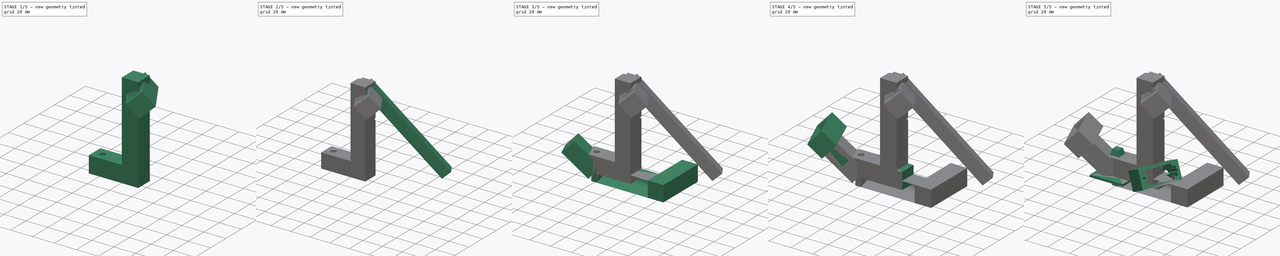
[diagram: build sequence overview — one tinted view per stage of 5, left to right]
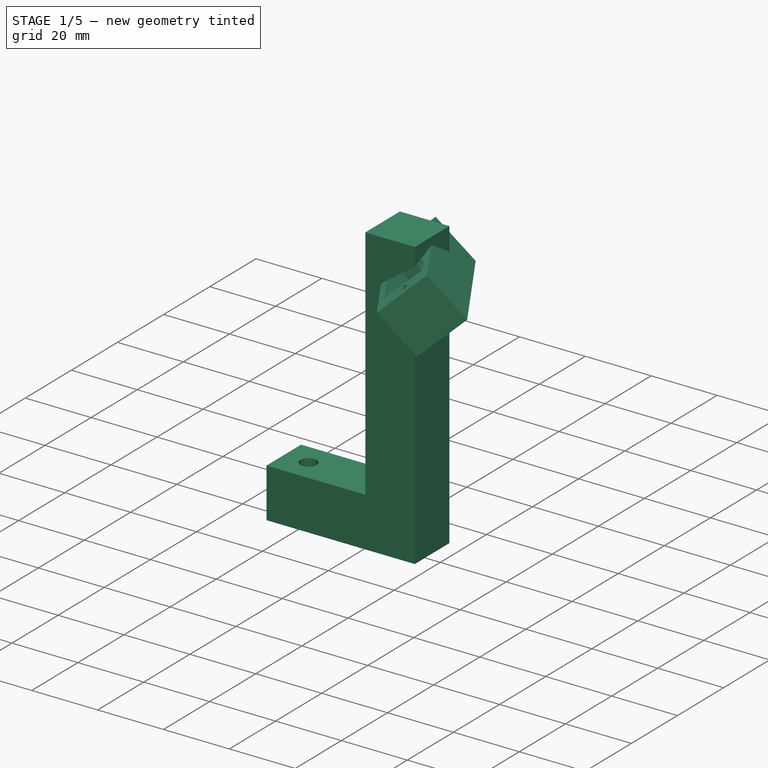
[diagram: stage 1 of 5 — iso view after this stage's code; geometry added in this stage tinted green]
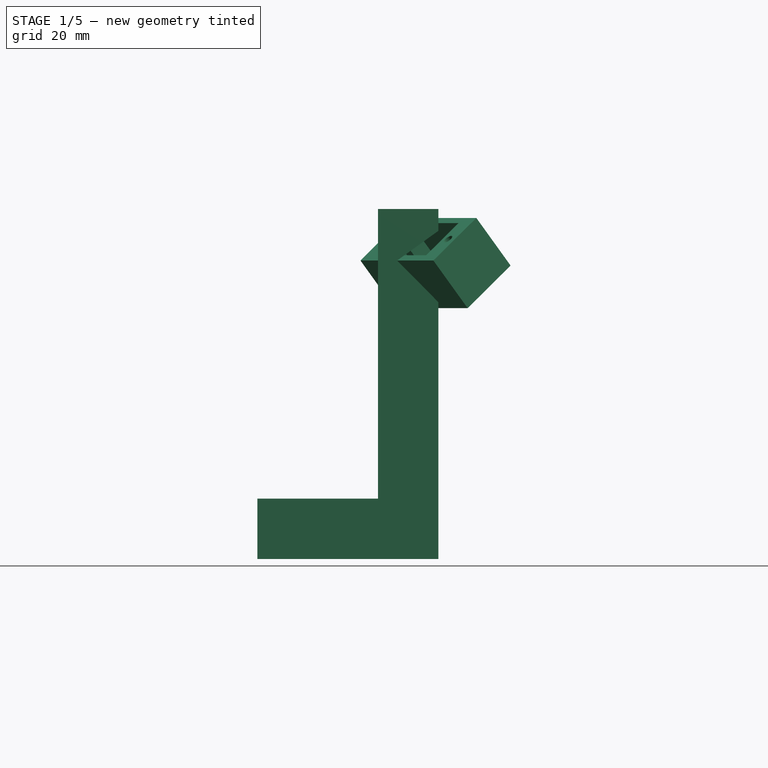
[diagram: stage 1 of 5 — front view after this stage's code; geometry added in this stage tinted green]
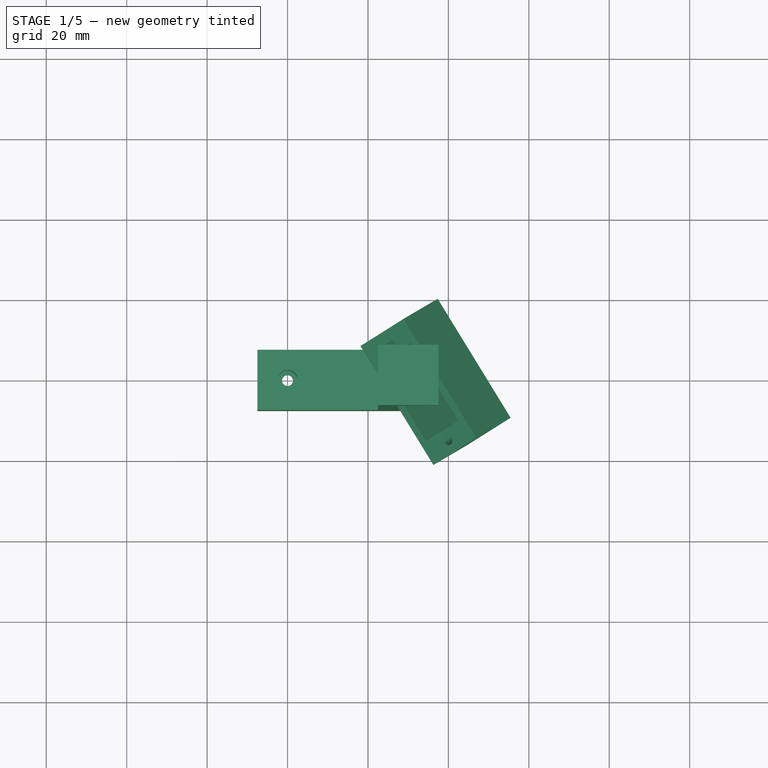
[diagram: stage 1 of 5 — top view after this stage's code; geometry added in this stage tinted green]
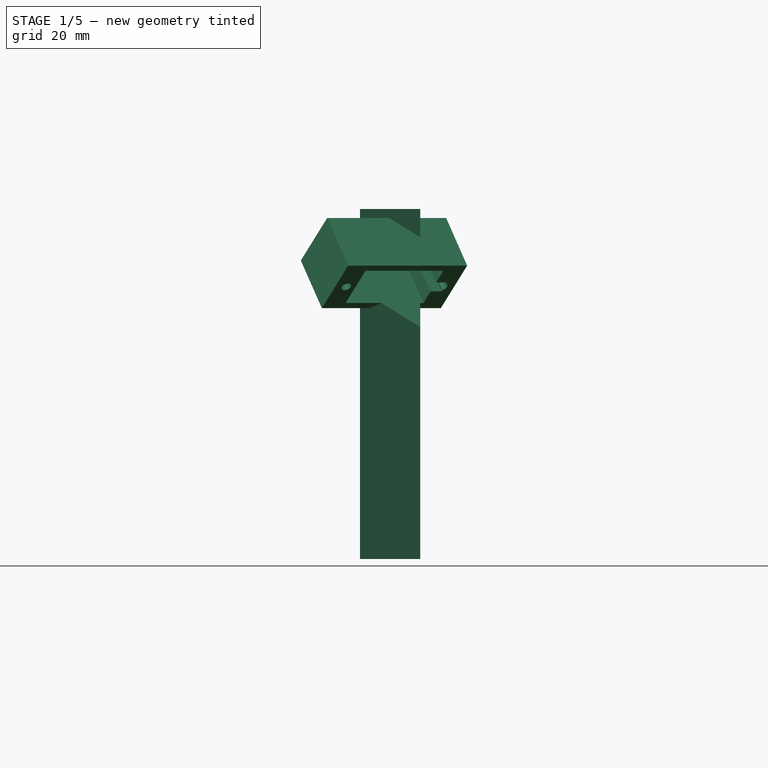
[diagram: stage 1 of 5 — right view after this stage's code; geometry added in this stage tinted green]
FCSTD DOCUMENT  (FreeCAD 0.21R33771 (Git))
Label: 3_joint_assembly
License: All rights reserved
LicenseURL: http://en.wikipedia.org/wiki/All_rights_reserved
objects: Sketcher::SketchObject×22, PartDesign::Pad×15, PartDesign::Plane×13, PartDesign::Pocket×7, PartDesign::Body×5, App::Part×3, Spreadsheet::Sheet×2, Part::Box×1
note: 85 computed .brp shape members not serialized (recipe doc carries the construction recipe); baked Part::Feature solids carry a one-line shape summary decoded from their .brp

FEATURE [Sketcher::SketchObject] Sketch008
  FullyConstrained = true
  MapMode = 5
  Support = -> [XY_Plane006]
  expr: Constraints[25] = <<Standards>>.shaft_thickness
  expr: Constraints[28] = <<Variables>>.length_2
  sketch-geometry (13):
    g0: LineSegment StartX=-7.5 StartY=-7.5 StartZ=0 EndX=-7.5 EndY=7.5 EndZ=0
    g1: LineSegment StartX=-7.5 StartY=7.5 StartZ=0 EndX=7.5 EndY=7.5 EndZ=0
    g2: LineSegment StartX=7.5 StartY=7.5 StartZ=0 EndX=7.5 EndY=-7.5 EndZ=0
    g3: LineSegment StartX=7.5 StartY=-7.5 StartZ=0 EndX=-7.5 EndY=-7.5 EndZ=0
    g4: GeomPoint X=0 Y=0 Z=0
    g5: LineSegment StartX=37.5 StartY=-7.5 StartZ=0 EndX=37.5 EndY=7.5 EndZ=0
    g6: LineSegment StartX=37.5 StartY=7.5 StartZ=0 EndX=22.5 EndY=7.5 EndZ=0
    g7: LineSegment StartX=22.5 StartY=7.5 StartZ=0 EndX=22.5 EndY=-7.5 EndZ=0
    g8: LineSegment StartX=22.5 StartY=-7.5 StartZ=0 EndX=37.5 EndY=-7.5 EndZ=0
    g9: GeomPoint X=30 Y=0 Z=0
    g10: LineSegment StartX=7.5 StartY=7.5 StartZ=0 EndX=22.5 EndY=7.5 EndZ=0
    g11: LineSegment StartX=22.5 StartY=-7.5 StartZ=0 EndX=7.5 EndY=-7.5 EndZ=0
    g12: Circle CenterX=0 CenterY=0 CenterZ=0 NormalX=0 NormalY=0 NormalZ=1 AngleXU=0 Radius=2.5
  constraints (31):
    c: Coincident(g0,g1)
    c: Coincident(g1,g2)
    c: Coincident(g2,g3)
    c: Coincident(g3,g0)
    c: Horizontal(g1)
    c: Horizontal(g3)
    c: Vertical(g0)
    c: Vertical(g2)
    c: Symmetric(g1,g0,g4)
    c: Coincident(g4,g-1)
    c: Coincident(g5,g6)
    c: Coincident(g6,g7)
    c: Coincident(g7,g8)
    c: Coincident(g8,g5)
    c: Horizontal(g6)
    c: Horizontal(g8)
    c: Vertical(g5)
    c: Vertical(g7)
    c: Symmetric(g6,g5,g9)
    c: PointOnObject(g9,g-1)
    c: Coincident(g10,g1)
    c: Coincident(g10,g6)
    c: Horizontal(g10)
    c: Coincident(g11,g7)
    c: Coincident(g11,g2)
    c: Distance(g0) = 15
    c: Equal(g0,g1)
    c: Equal(g0,g6)
    c: Distance(g9,g4) = 30
    c: Coincident(g12,g4)
    c: Diameter(g12) = 5
FEATURE [PartDesign::Pad] Pad007
  Direction = (0,0,1)
  Length = 15
  Length2 = 10
  Profile = -> Sketch008
  ReferenceAxis = -> Sketch008 [N_Axis]
  Type = 0
  expr: Length = <<Standards>>.shaft_thickness
FEATURE [PartDesign::Plane] DatumPlane008
  AttachmentOffset = pos=(0,0,-3) rot=(0,0,1;0rad)
  Length = 93.1537
  MapMode = 5
  Placement = pos=(0,0,3) rot=(1,0,0;3.14159rad)
  ResizeMode = 0
  Support = -> [Pad007]
  Width = 62.686
FEATURE [Sketcher::SketchObject] Sketch009
  ExternalGeometry = -> [Pad007]
  FullyConstrained = true
  MapMode = 5
  Placement = pos=(0,0,3) rot=(1,0,0;3.14159rad)
  Support = -> [DatumPlane008]
  sketch-geometry (2):
    g0: Circle CenterX=0 CenterY=0 CenterZ=0 NormalX=0 NormalY=0 NormalZ=1 AngleXU=0 Radius=1.35
    g1: Circle CenterX=0 CenterY=0 CenterZ=0 NormalX=0 NormalY=0 NormalZ=1 AngleXU=0 Radius=2.5
  constraints (4):
    c: Coincident(g0,g-3)
    c: Coincident(g1,g0)
    c: Diameter(g0) = 2.7
    c: Equal(g1,g-3)
FEATURE [PartDesign::Pad] Pad008
  BaseFeature = -> Pad007
  Direction = (0,0,-1)
  Length = 2
  Length2 = 10
  Profile = -> Sketch009
  ReferenceAxis = -> Sketch009 [N_Axis]
  Reversed = true
  Type = 0
FEATURE [Sketcher::SketchObject] Sketch010
  FullyConstrained = true
  MapMode = 5
  Support = -> [XY_Plane006]
  expr: Constraints[25] = Sketch008.Constraints[25]
  expr: Constraints[28] = Sketch008.Constraints[28]
  expr: Constraints[30] = Sketch008.Constraints[30]
  sketch-geometry (13):
    g0: LineSegment StartX=-7.5 StartY=-7.5 StartZ=0 EndX=-7.5 EndY=7.5 EndZ=0
    g1: LineSegment StartX=-7.5 StartY=7.5 StartZ=0 EndX=7.5 EndY=7.5 EndZ=0
    g2: LineSegment StartX=7.5 StartY=7.5 StartZ=0 EndX=7.5 EndY=-7.5 EndZ=0
    g3: LineSegment StartX=7.5 StartY=-7.5 StartZ=0 EndX=-7.5 EndY=-7.5 EndZ=0
    g4: GeomPoint X=0 Y=0 Z=0
    g5: LineSegment StartX=37.5 StartY=-7.5 StartZ=0 EndX=37.5 EndY=7.5 EndZ=0
    g6: LineSegment StartX=37.5 StartY=7.5 StartZ=0 EndX=22.5 EndY=7.5 EndZ=0
    g7: LineSegment StartX=22.5 StartY=7.5 StartZ=0 EndX=22.5 EndY=-7.5 EndZ=0
    g8: LineSegment StartX=22.5 StartY=-7.5 StartZ=0 EndX=37.5 EndY=-7.5 EndZ=0
    g9: GeomPoint X=30 Y=0 Z=0
    g10: LineSegment StartX=7.5 StartY=7.5 StartZ=0 EndX=22.5 EndY=7.5 EndZ=0
    g11: LineSegment StartX=22.5 StartY=-7.5 StartZ=0 EndX=7.5 EndY=-7.5 EndZ=0
    g12: Circle CenterX=0 CenterY=0 CenterZ=0 NormalX=0 NormalY=0 NormalZ=1 AngleXU=0 Radius=2.5
  constraints (31):
    c: Coincident(g0,g1)
    c: Coincident(g1,g2)
    c: Coincident(g2,g3)
    c: Coincident(g3,g0)
    c: Horizontal(g1)
    c: Horizontal(g3)
    c: Vertical(g0)
    c: Vertical(g2)
    c: Symmetric(g1,g0,g4)
    c: Coincident(g4,g-1)
    c: Coincident(g5,g6)
    c: Coincident(g6,g7)
    c: Coincident(g7,g8)
    c: Coincident(g8,g5)
    c: Horizontal(g6)
    c: Horizontal(g8)
    c: Vertical(g5)
    c: Vertical(g7)
    c: Symmetric(g6,g5,g9)
    c: PointOnObject(g9,g-1)
    c: Coincident(g10,g1)
    c: Coincident(g10,g6)
    c: Horizontal(g10)
    c: Coincident(g11,g7)
    c: Coincident(g11,g2)
    c: Distance(g0) = 15
    c: Equal(g0,g1)
    c: Equal(g0,g6)
    c: Distance(g9,g4) = 30
    c: Coincident(g12,g4)
    c: Diameter(g12) = 5
FEATURE [PartDesign::Pad] Pad009
  BaseFeature = -> Pad008
  Direction = (0,0,1)
  Length = 87
  Length2 = 10
  Profile = -> Sketch010
  ReferenceAxis = -> Sketch010 [N_Axis]
  Type = 0
  expr: Length = <<Standards>>.shaft_thickness + <<Variables>>.height_2
FEATURE [PartDesign::Plane] DatumPlane009  label="Alpha003"
  AttachmentOffset = pos=(0,79.5,30) rot=(0,1,0;0.55rad)
  Length = 104.164
  MapMode = 5
  Placement = pos=(30,1.1e-14,79.5) rot=(0.368099,0.657458,0.657458;2.43618rad)
  ResizeMode = 0
  Support = -> [YZ_Plane006]
  Width = 131.478
  expr: .AttachmentOffset.Base.y = <<Variables>>.height_2 + <<Standards>>.shaft_thickness / 2
  expr: .AttachmentOffset.Base.z = <<Variables>>.length_2
  expr: .AttachmentOffset.Rotation.Pitch = <<Variables>>.alpha_3 * 180 / pi
  expr: .AttachmentOffset.Rotation.Roll = 0
FEATURE [PartDesign::Plane] DatumPlane010  label="Beta003"
  AttachmentOffset = pos=(0,0,0) rot=(1,0,0;0.87rad)
  Length = 106.82
  MapMode = 5
  Placement = pos=(30,8.9e-15,79.5) rot=(0.465431,0.831303,0.303824;2.80461rad)
  ResizeMode = 0
  Support = -> [DatumPlane009]
  Width = 166.763
  expr: .AttachmentOffset.Rotation.Roll = -<<Variables>>.beta_3 * 180 / pi
FEATURE [Sketcher::SketchObject] Sketch011
  FullyConstrained = true
  MapMode = 5
  Placement = pos=(30,7.1e-15,79.5) rot=(0.465431,0.831303,0.303824;2.80461rad)
  Support = -> [DatumPlane010]
  expr: Constraints[52] = <<Standards>>.thickness
  expr: Constraints[64] = 12.2 + <<Standards>>.tolerance
  expr: Constraints[65] = 22.5 + <<Standards>>.tolerance
  sketch-geometry (21):
    g0: LineSegment StartX=-16.2 StartY=6.2 StartZ=0 EndX=6.5 EndY=6.2 EndZ=0
    g1: LineSegment StartX=6.5 StartY=-6.2 StartZ=0 EndX=-16.2 EndY=-6.2 EndZ=0
    g2: LineSegment StartX=-16.2 StartY=-6.2 StartZ=0 EndX=-16.2 EndY=6.2 EndZ=0
    g3: LineSegment StartX=6.5 StartY=6.2 StartZ=0 EndX=6.5 EndY=1.75 EndZ=0
    g4: LineSegment StartX=6.5 StartY=1.75 StartZ=0 EndX=9.7 EndY=1.75 EndZ=0
    g5: LineSegment StartX=9.7 StartY=1.75 StartZ=0 EndX=9.7 EndY=1.2 EndZ=0
    g6: LineSegment StartX=6.5 StartY=-6.2 StartZ=0 EndX=6.5 EndY=-1.75 EndZ=0
    g7: LineSegment StartX=6.5 StartY=-1.75 StartZ=0 EndX=9.7 EndY=-1.75 EndZ=0
    g8: LineSegment StartX=9.7 StartY=-1.75 StartZ=0 EndX=9.7 EndY=-1.2 EndZ=0
    g9: ArcOfCircle CenterX=9.2 CenterY=0 CenterZ=0 NormalX=0 NormalY=0 NormalZ=1 AngleXU=0 Radius=1.3 StartAngle=5.10718 EndAngle=7.45919
    g10: Circle CenterX=-18.9 CenterY=0 CenterZ=0 NormalX=0 NormalY=0 NormalZ=1 AngleXU=0 Radius=1.3
    g11: LineSegment StartX=-22.2 StartY=8.2 StartZ=0 EndX=12.5 EndY=8.2 EndZ=0
    g12: LineSegment StartX=12.5 StartY=8.2 StartZ=0 EndX=12.5 EndY=-8.2 EndZ=0
    g13: LineSegment StartX=12.5 StartY=-8.2 StartZ=0 EndX=-22.2 EndY=-8.2 EndZ=0
    g14: LineSegment StartX=-22.2 StartY=-8.2 StartZ=0 EndX=-22.2 EndY=8.2 EndZ=0
    g15: LineSegment StartX=-20.2 StartY=0 StartZ=0 EndX=-22.2 EndY=0 EndZ=0
    g16: LineSegment StartX=6.5 StartY=6.2 StartZ=0 EndX=6.5 EndY=8.2 EndZ=0
    g17: LineSegment StartX=-16.2 StartY=-6.2 StartZ=0 EndX=-16.2 EndY=-8.2 EndZ=0
    g18: LineSegment StartX=9.2 StartY=0 StartZ=0 EndX=6.5 EndY=0 EndZ=0
    g19: LineSegment StartX=10.5 StartY=0 StartZ=0 EndX=12.5 EndY=0 EndZ=0
    g20: LineSegment StartX=-18.9 StartY=0 StartZ=0 EndX=-16.2 EndY=0 EndZ=0
  constraints (66):
    c: Coincident(g1,g2)
    c: Coincident(g2,g0)
    c: Horizontal(g0)
    c: Horizontal(g1)
    c: Vertical(g2)
    c: Coincident(g3,g0)
    c: Vertical(g3)
    c: Coincident(g4,g3)
    c: Horizontal(g4)
    c: Coincident(g5,g4)
    c: Vertical(g5)
    c: Coincident(g6,g1)
    c: Vertical(g6)
    c: Coincident(g7,g6)
    c: Horizontal(g7)
    c: Coincident(g8,g7)
    c: Vertical(g8)
    c: PointOnObject(g9,g-1)
    c: Coincident(g9,g5)
    c: Coincident(g9,g8)
    c: Equal(g5,g8)
    c: Equal(g7,g4)
    c: Equal(g3,g6)
    c: PointOnObject(g3,g6)
    c: PointOnObject(g10,g-1)
    c: Coincident(g11,g12)
    c: Coincident(g12,g13)
    c: Coincident(g13,g14)
    c: Coincident(g14,g11)
    c: Horizontal(g11)
    c: Horizontal(g13)
    c: Vertical(g12)
    c: Vertical(g14)
    c: PointOnObject(g15,g14)
    c: Coincident(g16,g0)
    c: PointOnObject(g16,g11)
    c: Vertical(g16)
    c: Coincident(g17,g1)
    c: PointOnObject(g17,g13)
    c: Vertical(g17)
    c: Equal(g10,g9)
    c: Coincident(g18,g9)
    c: PointOnObject(g18,g-1)
    c: PointOnObject(g18,g3)
    c: PointOnObject(g19,g9)
    c: PointOnObject(g19,g12)
    c: Horizontal(g19)
    c: Perpendicular(g9,g19)
    c: Horizontal(g15)
    c: Equal(g15,g17)
    c: Equal(g17,g16)
    c: Equal(g16,g19)
    c: Distance(g16) = 2
    c: PointOnObject(g15,g10)
    c: Perpendicular(g10,g15)
    c: Coincident(g20,g10)
    c: PointOnObject(g20,g2)
    c: Horizontal(g20)
    c: Equal(g20,g18)
    c: Distance(g3,g6) = 3.5
    c: Distance(g4) = 3.2
    c: Distance(g18) = 2.7
    c: Diameter(g9) = 2.6
    c: Distance(g-1,g18) = 6.5
    c: Distance(g2) = 12.4
    c: Distance(g0) = 22.7
FEATURE [PartDesign::Pad] Pad010
  BaseFeature = -> Pad009
  Direction = (0.54973,0.337043,-0.764329)
  Length = 15.5
  Length2 = 10
  Profile = -> Sketch011
  ReferenceAxis = -> Sketch011 [N_Axis]
  Type = 0
FEATURE [Sketcher::SketchObject] Sketch012
  FullyConstrained = true
  MapMode = 5
  Placement = pos=(30,7.1e-15,79.5) rot=(0.465431,0.831303,0.303824;2.80461rad)
  Support = -> [DatumPlane010]
  expr: Constraints[52] = Sketch011.Constraints[52]
  expr: Constraints[59] = Sketch011.Constraints[59]
  expr: Constraints[60] = Sketch011.Constraints[60]
  expr: Constraints[61] = Sketch011.Constraints[61]
  expr: Constraints[62] = Sketch011.Constraints[62]
  expr: Constraints[63] = Sketch011.Constraints[63]
  expr: Constraints[64] = Sketch011.Constraints[64]
  expr: Constraints[65] = Sketch011.Constraints[65]
  sketch-geometry (21):
    g0: LineSegment StartX=-16.2 StartY=6.2 StartZ=0 EndX=6.5 EndY=6.2 EndZ=0
    g1: LineSegment StartX=6.5 StartY=-6.2 StartZ=0 EndX=-16.2 EndY=-6.2 EndZ=0
    g2: LineSegment StartX=-16.2 StartY=-6.2 StartZ=0 EndX=-16.2 EndY=6.2 EndZ=0
    g3: LineSegment StartX=6.5 StartY=6.2 StartZ=0 EndX=6.5 EndY=1.75 EndZ=0
    g4: LineSegment StartX=6.5 StartY=1.75 StartZ=0 EndX=9.7 EndY=1.75 EndZ=0
    g5: LineSegment StartX=9.7 StartY=1.75 StartZ=0 EndX=9.7 EndY=1.2 EndZ=0
    g6: LineSegment StartX=6.5 StartY=-6.2 StartZ=0 EndX=6.5 EndY=-1.75 EndZ=0
    g7: LineSegment StartX=6.5 StartY=-1.75 StartZ=0 EndX=9.7 EndY=-1.75 EndZ=0
    g8: LineSegment StartX=9.7 StartY=-1.75 StartZ=0 EndX=9.7 EndY=-1.2 EndZ=0
    g9: ArcOfCircle CenterX=9.2 CenterY=0 CenterZ=0 NormalX=0 NormalY=0 NormalZ=1 AngleXU=0 Radius=1.3 StartAngle=5.10718 EndAngle=7.45919
    g10: Circle CenterX=-18.9 CenterY=0 CenterZ=0 NormalX=0 NormalY=0 NormalZ=1 AngleXU=0 Radius=1.3
    g11: LineSegment StartX=-22.2 StartY=8.2 StartZ=0 EndX=12.5 EndY=8.2 EndZ=0
    g12: LineSegment StartX=12.5 StartY=8.2 StartZ=0 EndX=12.5 EndY=-8.2 EndZ=0
    g13: LineSegment StartX=12.5 StartY=-8.2 StartZ=0 EndX=-22.2 EndY=-8.2 EndZ=0
    g14: LineSegment StartX=-22.2 StartY=-8.2 StartZ=0 EndX=-22.2 EndY=8.2 EndZ=0
    g15: LineSegment StartX=-20.2 StartY=0 StartZ=0 EndX=-22.2 EndY=0 EndZ=0
    g16: LineSegment StartX=6.5 StartY=6.2 StartZ=0 EndX=6.5 EndY=8.2 EndZ=0
    g17: LineSegment StartX=-16.2 StartY=-6.2 StartZ=0 EndX=-16.2 EndY=-8.2 EndZ=0
    g18: LineSegment StartX=9.2 StartY=0 StartZ=0 EndX=6.5 EndY=0 EndZ=0
    g19: LineSegment StartX=10.5 StartY=0 StartZ=0 EndX=12.5 EndY=0 EndZ=0
    g20: LineSegment StartX=-18.9 StartY=0 StartZ=0 EndX=-16.2 EndY=0 EndZ=0
  constraints (66):
    c: Coincident(g1,g2)
    c: Coincident(g2,g0)
    c: Horizontal(g0)
    c: Horizontal(g1)
    c: Vertical(g2)
    c: Coincident(g3,g0)
    c: Vertical(g3)
    c: Coincident(g4,g3)
    c: Horizontal(g4)
    c: Coincident(g5,g4)
    c: Vertical(g5)
    c: Coincident(g6,g1)
    c: Vertical(g6)
    c: Coincident(g7,g6)
    c: Horizontal(g7)
    c: Coincident(g8,g7)
    c: Vertical(g8)
    c: PointOnObject(g9,g-1)
    c: Coincident(g9,g5)
    c: Coincident(g9,g8)
    c: Equal(g5,g8)
    c: Equal(g7,g4)
    c: Equal(g3,g6)
    c: PointOnObject(g3,g6)
    c: PointOnObject(g10,g-1)
    c: Coincident(g11,g12)
    c: Coincident(g12,g13)
    c: Coincident(g13,g14)
    c: Coincident(g14,g11)
    c: Horizontal(g11)
    c: Horizontal(g13)
    c: Vertical(g12)
    c: Vertical(g14)
    c: PointOnObject(g15,g14)
    c: Coincident(g16,g0)
    c: PointOnObject(g16,g11)
    c: Vertical(g16)
    c: Coincident(g17,g1)
    c: PointOnObject(g17,g13)
    c: Vertical(g17)
    c: Equal(g10,g9)
    c: Coincident(g18,g9)
    c: PointOnObject(g18,g-1)
    c: PointOnObject(g18,g3)
    c: PointOnObject(g19,g9)
    c: PointOnObject(g19,g12)
    c: Horizontal(g19)
    c: Perpendicular(g9,g19)
    c: Horizontal(g15)
    c: Equal(g15,g17)
    c: Equal(g17,g16)
    c: Equal(g16,g19)
    c: Distance(g16) = 2
    c: PointOnObject(g15,g10)
    c: Perpendicular(g10,g15)
    c: Coincident(g20,g10)
    c: PointOnObject(g20,g2)
    c: Horizontal(g20)
    c: Equal(g20,g18)
    c: Distance(g3,g6) = 3.5
    c: Distance(g4) = 3.2
    c: Distance(g18) = 2.7
    c: Diameter(g9) = 2.6
    c: Distance(g-1,g18) = 6.5
    c: Distance(g2) = 12.4
    c: Distance(g0) = 22.7
FEATURE [PartDesign::Pocket] Pocket001
  BaseFeature = -> Pad010
  Direction = (-0.54973,-0.337043,0.764329)
  Length = 31
  Length2 = 5
  Profile = -> Sketch012
  ReferenceAxis = -> Sketch012 [N_Axis]
  Reversed = true
  Type = 0
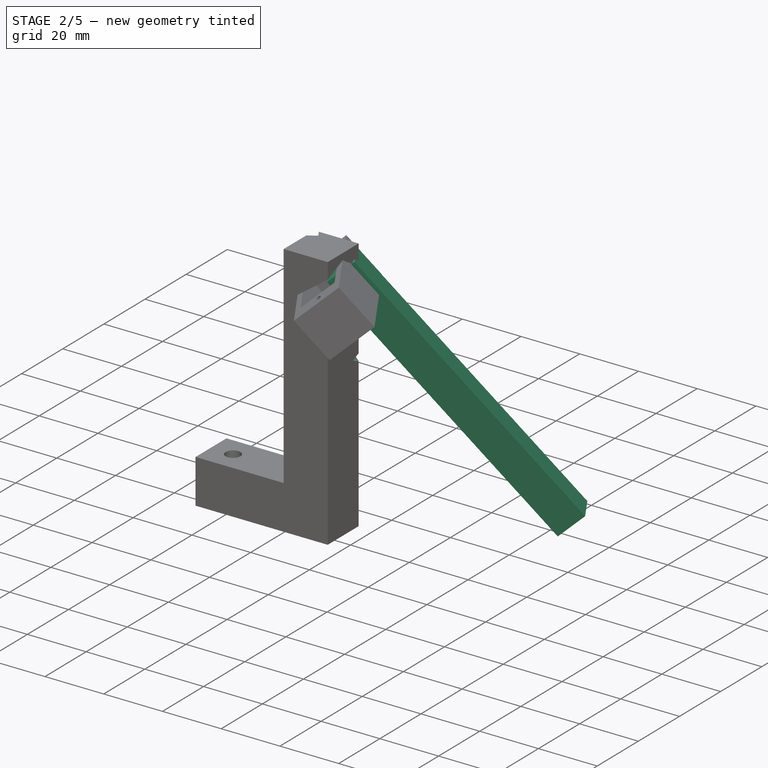
[diagram: stage 2 of 5 — iso view after this stage's code; geometry added in this stage tinted green]
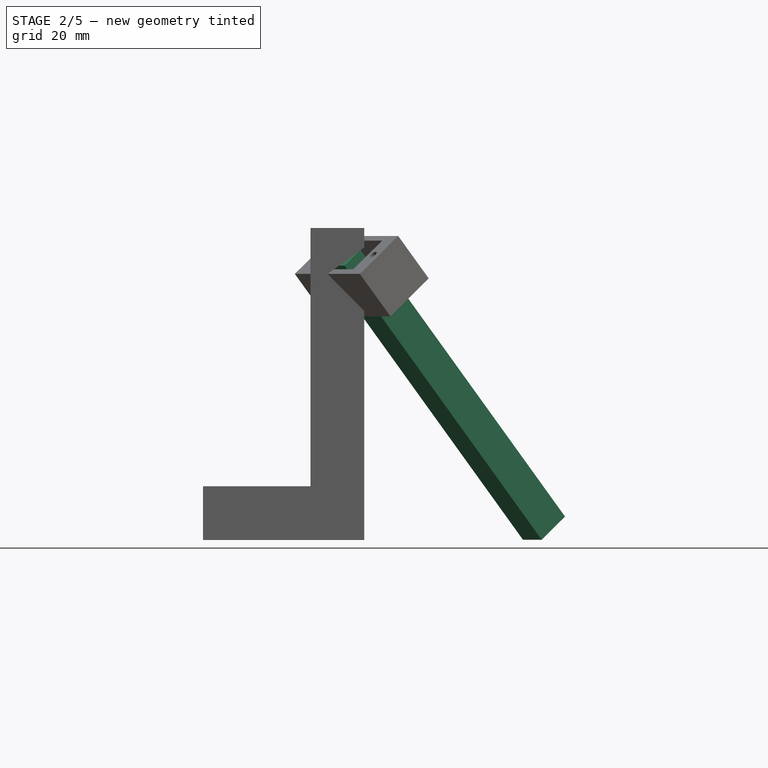
[diagram: stage 2 of 5 — front view after this stage's code; geometry added in this stage tinted green]
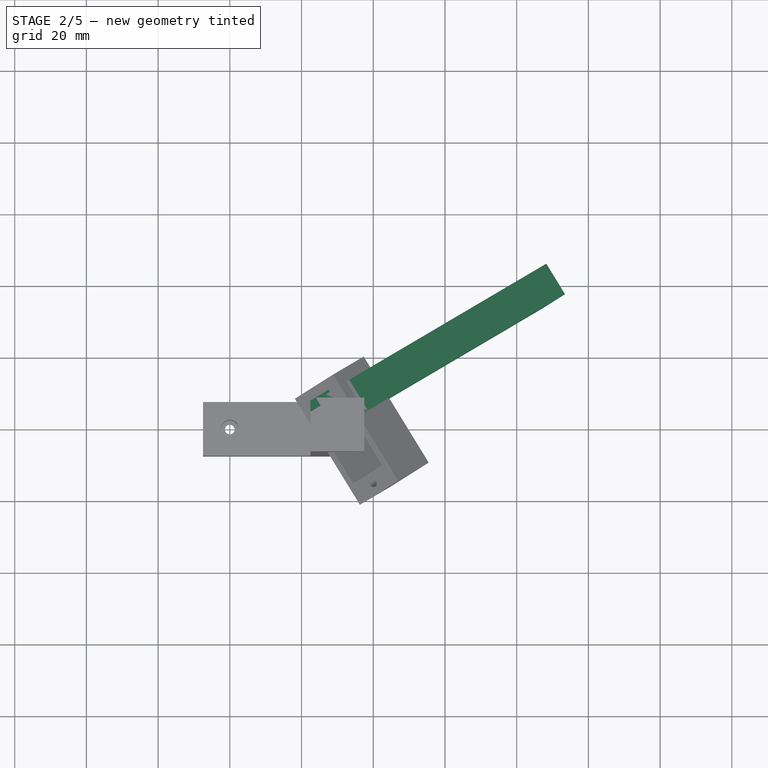
[diagram: stage 2 of 5 — top view after this stage's code; geometry added in this stage tinted green]
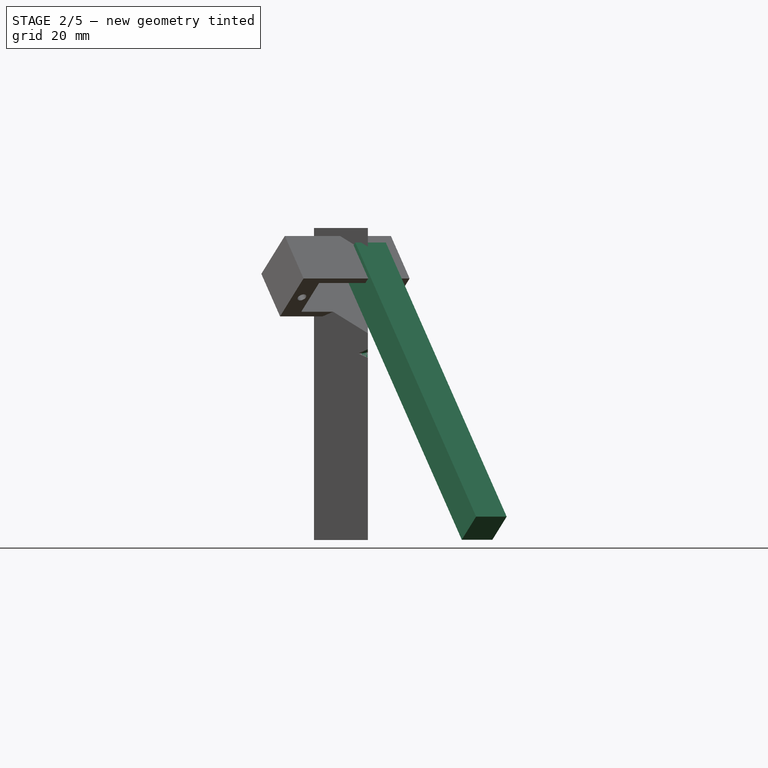
[diagram: stage 2 of 5 — right view after this stage's code; geometry added in this stage tinted green]
FEATURE [Sketcher::SketchObject] Sketch013
  ExternalGeometry = -> [Pocket001]
  FullyConstrained = true
  MapMode = 5
  Placement = pos=(30,7.1e-15,79.5) rot=(0.465431,0.831303,0.303824;2.80461rad)
  Support = -> [DatumPlane010]
  expr: Constraints[8] = 7.6 + <<Standards>>.tolerance
  expr: Constraints[9] = 2.6 + <<Standards>>.tolerance
  sketch-geometry (5):
    g0: LineSegment StartX=6.9 StartY=-3.9 StartZ=0 EndX=9.7 EndY=-3.9 EndZ=0
    g1: LineSegment StartX=9.7 StartY=-3.9 StartZ=0 EndX=9.7 EndY=3.9 EndZ=0
    g2: LineSegment StartX=9.7 StartY=3.9 StartZ=0 EndX=6.9 EndY=3.9 EndZ=0
    g3: LineSegment StartX=6.9 StartY=3.9 StartZ=0 EndX=6.9 EndY=-3.9 EndZ=0
    g4: GeomPoint X=9.7 Y=-2.5437e-12 Z=0
  constraints (12):
    c: Coincident(g0,g1)
    c: Coincident(g1,g2)
    c: Coincident(g2,g3)
    c: Coincident(g3,g0)
    c: Horizontal(g0)
    c: Horizontal(g2)
    c: Vertical(g1)
    c: Vertical(g3)
    c: Distance(g3) = 7.8
    c: Distance(g2) = 2.8
    c: Symmetric(g1,g0,g4)
    c: Symmetric(g-3,g-4,g4)
FEATURE [PartDesign::Pocket] Pocket002
  BaseFeature = -> Pocket001
  Direction = (-0.54973,-0.337043,0.764329)
  Length = 31
  Length2 = 5
  Midplane = true
  Profile = -> Sketch013
  ReferenceAxis = -> Sketch013 [N_Axis]
  Type = 0
FEATURE [PartDesign::Body] Body005  label="Arm002"
  Group = -> [Sketch016,Pad011,Sketch017,Pad012,DatumPlane011,Sketch018,Pad013,DatumPlane012,Sketch019,Pad014]
  Origin = -> Origin008
  Tip = -> Pad014
FEATURE [App::Part] Part002  label="Joint 3"
  Group = -> [Body005]
  Origin = -> Origin007
  Placement = pos=(44.7053,9.01589,59.0542) rot=(-0.234451,0.830949,0.504536;1.0198rad)
FEATURE [Part::Box] Box005  label="Cube001"
  AttacherType = Attacher::AttachEngine3D
  Height = 10
  Length = 100
  Placement = pos=(32,0,76.5) rot=(0.234451,-0.830949,-0.504536;5.26339rad)
  Width = 10
FEATURE [PartDesign::Plane] DatumPlane016
  Length = 93.1537
  MapMode = 5
  Placement = pos=(0,0,87) rot=(0,0,1;0rad)
  ResizeMode = 0
  Support = -> [Pocket002]
  Width = 62.686
FEATURE [Sketcher::SketchObject] Sketch026
  ExternalGeometry = -> [Pocket002]
  FullyConstrained = true
  MapMode = 5
  Placement = pos=(0,0,87) rot=(0,0,1;0rad)
  Support = -> [DatumPlane016]
  sketch-geometry (3):
    g0: LineSegment StartX=22.5 StartY=7.5 StartZ=0 EndX=23.6749 EndY=7.5 EndZ=0
    g1: LineSegment StartX=23.6749 StartY=7.5 StartZ=0 EndX=22.5 EndY=6.77968 EndZ=0
    g2: LineSegment StartX=22.5 StartY=6.77968 StartZ=0 EndX=22.5 EndY=7.5 EndZ=0
  constraints (6):
    c: Coincident(g0,g-5)
    c: Coincident(g0,g-3)
    c: Coincident(g1,g0)
    c: Coincident(g1,g-4)
    c: Coincident(g2,g1)
    c: Coincident(g2,g0)
FEATURE [PartDesign::Pocket] Pocket007
  BaseFeature = -> Pocket002
  Direction = (0,0,-1)
  Length = 0
  Length2 = 5
  Profile = -> Sketch026
  ReferenceAxis = -> Sketch026 [N_Axis]
  Type = 3
  UpToFace = -> Pocket002 [Face25]
FEATURE [PartDesign::Plane] DatumPlane017
  AttachmentOffset = pos=(0,0,26.75) rot=(0,0,1;0rad)
  Length = 106.82
  MapMode = 5
  Placement = pos=(44.7053,9.01589,59.0542) rot=(0.465431,0.831303,0.303824;2.80461rad)
  ResizeMode = 0
  Support = -> [DatumPlane010]
  Width = 166.763
FEATURE [Sketcher::SketchObject] Sketch027
  FullyConstrained = true
  MapMode = 5
  Placement = pos=(44.7053,9.01589,59.0542) rot=(0.465431,0.831303,0.303824;2.80461rad)
  Support = -> [DatumPlane017]
  expr: Constraints[10] = <<Standards>>.shaft_thickness + <<Standards>>.tolerance * 2
  sketch-geometry (6):
    g0: LineSegment StartX=-7.7 StartY=-7.7 StartZ=0 EndX=-7.7 EndY=7.7 EndZ=0
    g1: LineSegment StartX=-7.7 StartY=7.7 StartZ=0 EndX=7.7 EndY=7.7 EndZ=0
    g2: LineSegment StartX=7.7 StartY=7.7 StartZ=0 EndX=7.7 EndY=-7.7 EndZ=0
    g3: LineSegment StartX=7.7 StartY=-7.7 StartZ=0 EndX=-7.7 EndY=-7.7 EndZ=0
    g4: GeomPoint X=0 Y=0 Z=0
    g5: Circle CenterX=0 CenterY=0 CenterZ=0 NormalX=0 NormalY=0 NormalZ=1 AngleXU=0 Radius=10.8894
  constraints (14):
    c: Coincident(g0,g1)
    c: Coincident(g1,g2)
    c: Coincident(g2,g3)
    c: Coincident(g3,g0)
    c: Horizontal(g1)
    c: Horizontal(g3)
    c: Vertical(g0)
    c: Vertical(g2)
    c: Symmetric(g1,g0,g4)
    c: Coincident(g4,g-1)
    c: Distance(g1) = 15.4
    c: Equal(g1,g2)
    c: Coincident(g5,g4)
    c: PointOnObject(g1,g5)
FEATURE [PartDesign::Pocket] Pocket008
  BaseFeature = -> Pocket007
  Direction = (-0.54973,-0.337043,0.764329)
  Length = 5
  Length2 = 5
  Profile = -> Sketch027
  ReferenceAxis = -> Sketch027 [N_Axis]
  Reversed = true
  Type = 0
FEATURE [PartDesign::Body] Body004  label="Arm001"
  Group = -> [Sketch008,Pad007,DatumPlane008,Sketch009,Pad008,Sketch010,Pad009,DatumPlane009,DatumPlane010,Sketch011,Pad010,Sketch012,Pocket001,Sketch013,Pocket002,DatumPlane016,Sketch026,Pocket007,DatumPlane017,Sketch027,Pocket008]
  Origin = -> Origin006
  Tip = -> Pocket008
FEATURE [App::Part] Part001  label="Joint 2"
  Group = -> [Body004,Part002,Box005]
  Origin = -> Origin003
  Placement = pos=(-34.9635,-76.1489,44.929) rot=(0.862206,-0.435713,0.25837;1.60004rad)
FEATURE [App::Part] Part  label="Joint 1"
  Group = -> [Body,Body001,Body003,Part001]
  Origin = -> Origin
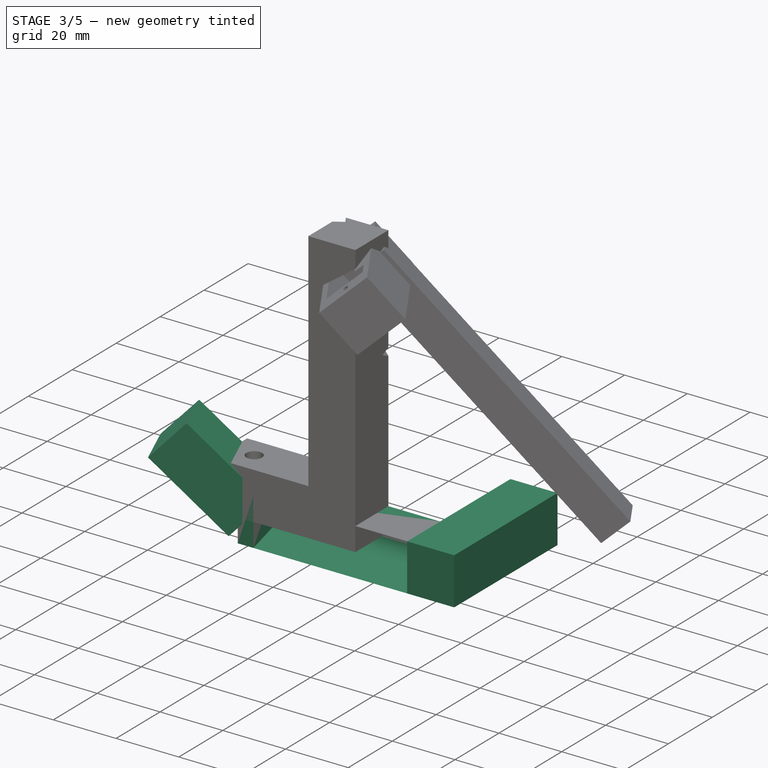
[diagram: stage 3 of 5 — iso view after this stage's code; geometry added in this stage tinted green]
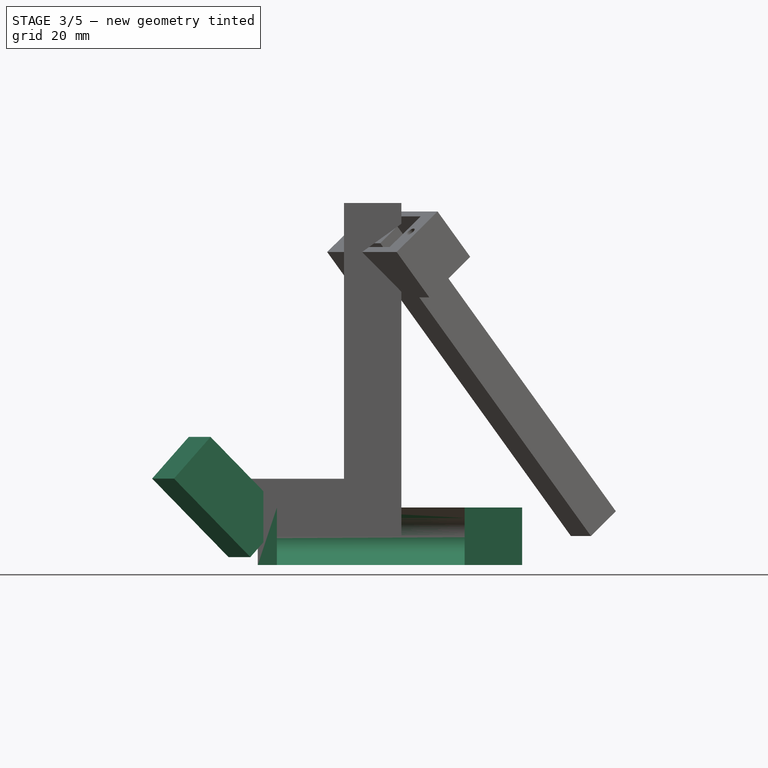
[diagram: stage 3 of 5 — front view after this stage's code; geometry added in this stage tinted green]
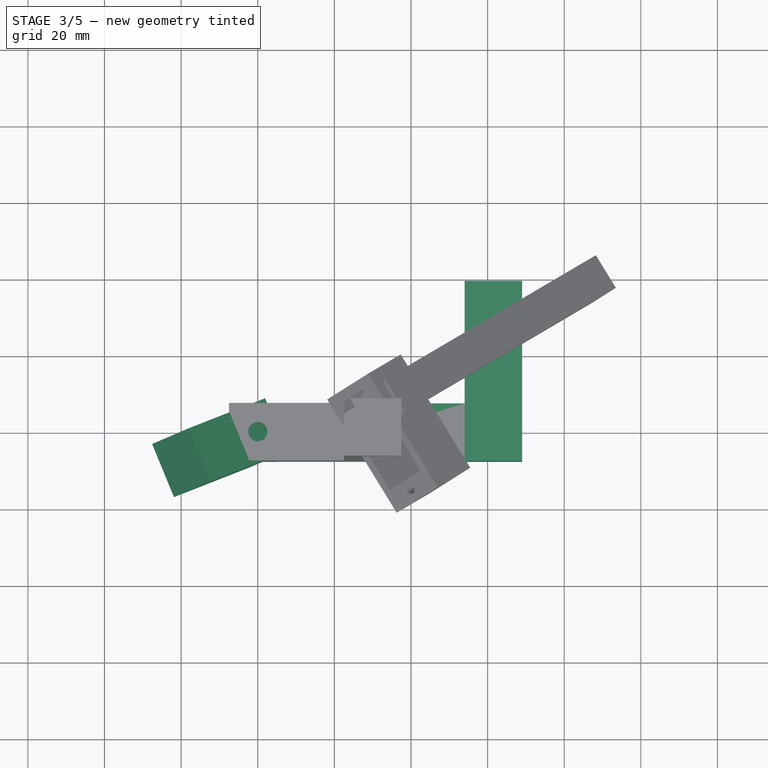
[diagram: stage 3 of 5 — top view after this stage's code; geometry added in this stage tinted green]
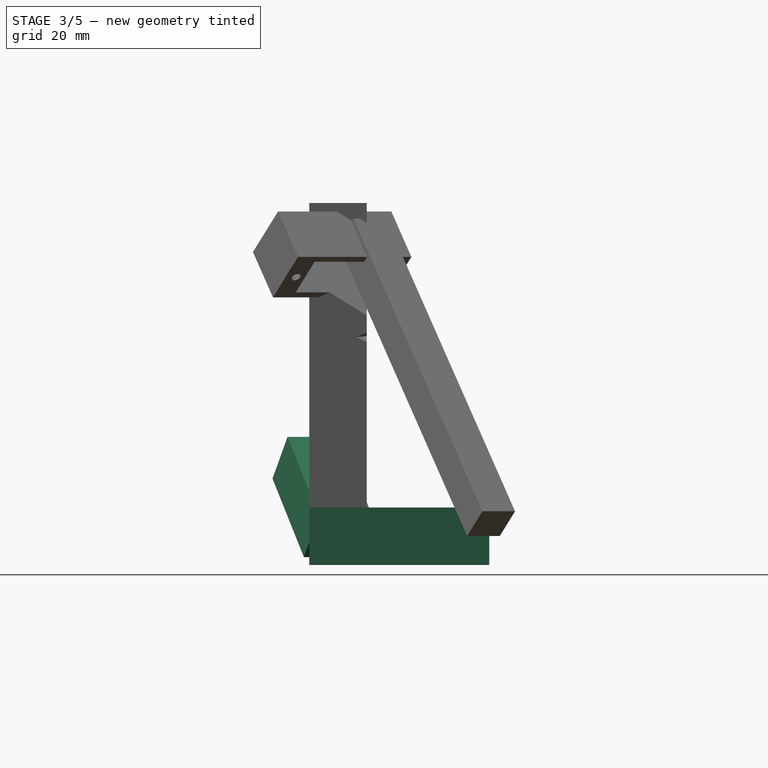
[diagram: stage 3 of 5 — right view after this stage's code; geometry added in this stage tinted green]
FEATURE [Spreadsheet::Sheet] Spreadsheet  label="Variables"
  cells = A1='Joint Index; B1='Alpha; C1='Beta; D1='Length; E1='Height; A2=0; B2(alpha_1)=0.39; C2(beta_1)=0.76; D2(length_1)=35; E2(height_1)=64; A3=1; B3(alpha_2)=-0.41; C3(beta_2)=0.45; D3(length_2)=30; E3(height_2)=72; A4=2; B4(alpha_3)=0.55; C4(beta_3)=-0.87; D4(length_3)=32; E4(height_3)=69
FEATURE [PartDesign::Plane] DatumPlane  label="Alpha"
  AttachmentOffset = pos=(0,0,0) rot=(0,1,0;0.39rad)
  Length = 87.0894
  MapMode = 5
  Placement = pos=(0,0,0) rot=(0.428213,0.638997,0.638997;2.33242rad)
  ResizeMode = 0
  Support = -> [YZ_Plane001]
  Width = 75.6376
  expr: .AttachmentOffset.Rotation.Pitch = <<Variables>>.alpha_1 * 180 / pi
FEATURE [PartDesign::Plane] DatumPlane001  label="Beta"
  AttachmentOffset = pos=(0,0,0) rot=(-1,0,0;0.76rad)
  Length = 90.928
  MapMode = 5
  Placement = pos=(0,0,0) rot=(0.507201,-0.339892,-0.791973;1.40452rad)
  ResizeMode = 0
  Support = -> [DatumPlane]
  Width = 119.755
  expr: .AttachmentOffset.Rotation.Roll = -<<Variables>>.beta_1 * 180 / pi
FEATURE [Sketcher::SketchObject] Sketch
  FullyConstrained = true
  MapMode = 5
  Placement = pos=(0,0,0) rot=(0.507201,-0.339892,-0.791973;1.40452rad)
  Support = -> [DatumPlane001]
  expr: Constraints[10] = Spreadsheet001.shaft_thickness
  sketch-geometry (5):
    g0: LineSegment StartX=-7.5 StartY=-7.5 StartZ=0 EndX=-7.5 EndY=7.5 EndZ=0
    g1: LineSegment StartX=-7.5 StartY=7.5 StartZ=0 EndX=7.5 EndY=7.5 EndZ=0
    g2: LineSegment StartX=7.5 StartY=7.5 StartZ=0 EndX=7.5 EndY=-7.5 EndZ=0
    g3: LineSegment StartX=7.5 StartY=-7.5 StartZ=0 EndX=-7.5 EndY=-7.5 EndZ=0
    g4: GeomPoint X=0 Y=0 Z=0
  constraints (12):
    c: Coincident(g0,g1)
    c: Coincident(g1,g2)
    c: Coincident(g2,g3)
    c: Coincident(g3,g0)
    c: Horizontal(g1)
    c: Horizontal(g3)
    c: Vertical(g0)
    c: Vertical(g2)
    c: Symmetric(g1,g0,g4)
    c: Coincident(g4,g-1)
    c: Distance(g1) = 15
    c: Equal(g1,g2)
FEATURE [Spreadsheet::Sheet] Spreadsheet001  label="Standards"
  cells = A1='Shaft Thickness; B1(shaft_thickness)=15; A2='Thickness; B2(thickness)=2; A3='Tolerance; B3(tolerance)=0.2
FEATURE [PartDesign::Pad] Pad  label="Height"
  Direction = (-0.670407,-0.275574,0.688921)
  Length = 29.75
  Length2 = 10
  Placement = pos=(0,0,0) rot=(0.507201,-0.339892,-0.791973;1.40452rad)
  Profile = -> Sketch
  ReferenceAxis = -> Sketch [N_Axis]
  Type = 0
  expr: Length = <<Variables>>.height_1 - 26.75 - <<Standards>>.shaft_thickness / 2
FEATURE [PartDesign::Body] Body  label="Axis"
  Group = -> [DatumPlane,DatumPlane001,Sketch,Pad,DatumPlane002,Sketch001,Pad001,Sketch015,Pocket004]
  Origin = -> Origin001
  Tip = -> Pocket004
FEATURE [Sketcher::SketchObject] Sketch016
  FullyConstrained = true
  MapMode = 5
  Placement = pos=(0,0,0) rot=(0.57735,0.57735,0.57735;2.0944rad)
  Support = -> [YZ_Plane008]
  expr: Constraints[9] = <<Standards>>.shaft_thickness
  sketch-geometry (5):
    g0: LineSegment StartX=-7.5 StartY=7.5 StartZ=0 EndX=7.5 EndY=7.5 EndZ=0
    g1: LineSegment StartX=7.5 StartY=7.5 StartZ=0 EndX=7.5 EndY=-7.5 EndZ=0
    g2: LineSegment StartX=7.5 StartY=-7.5 StartZ=0 EndX=-7.5 EndY=-7.5 EndZ=0
    g3: LineSegment StartX=-7.5 StartY=7.5 StartZ=0 EndX=-7.5 EndY=-7.5 EndZ=0
    g4: Circle CenterX=0 CenterY=0 CenterZ=0 NormalX=0 NormalY=0 NormalZ=1 AngleXU=0 Radius=2.5
  constraints (13):
    c: Coincident(g0,g1)
    c: Coincident(g1,g2)
    c: Horizontal(g0)
    c: Horizontal(g2)
    c: Vertical(g1)
    c: Coincident(g3,g0)
    c: Coincident(g3,g2)
    c: Vertical(g3)
    c: Equal(g0,g1)
    c: Distance(g0) = 15
    c: Symmetric(g0,g2,g-1)
    c: Coincident(g4,g-1)
    c: Diameter(g4) = 5
FEATURE [PartDesign::Pad] Pad011
  Direction = (1,-2e-16,3e-16)
  Length = 5
  Length2 = 10
  Placement = pos=(0,0,0) rot=(1,1,1;2.0944rad)
  Profile = -> Sketch016
  ReferenceAxis = -> Sketch016 [N_Axis]
  Type = 0
FEATURE [Sketcher::SketchObject] Sketch017
  FullyConstrained = true
  MapMode = 5
  Placement = pos=(0,0,0) rot=(0.57735,0.57735,0.57735;2.0944rad)
  Support = -> [YZ_Plane008]
  expr: Constraints[6] = Sketch016.Constraints[9]
  sketch-geometry (6):
    g0: LineSegment StartX=-7.5 StartY=7.5 StartZ=0 EndX=7.5 EndY=7.5 EndZ=0
    g1: LineSegment StartX=7.5 StartY=7.5 StartZ=0 EndX=7.5 EndY=-7.5 EndZ=0
    g2: LineSegment StartX=7.5 StartY=-7.5 StartZ=0 EndX=-7.5 EndY=-7.5 EndZ=0
    g3: LineSegment StartX=-7.5 StartY=7.5 StartZ=0 EndX=1.45138 EndY=4.78471 EndZ=0
    g4: ArcOfCircle CenterX=0 CenterY=0 CenterZ=0 NormalX=0 NormalY=0 NormalZ=1 AngleXU=0 Radius=5 StartAngle=5.0069 EndAngle=7.55947
    g5: LineSegment StartX=-7.5 StartY=-7.5 StartZ=0 EndX=1.45138 EndY=-4.78471 EndZ=0
  constraints (15):
    c: Coincident(g0,g1)
    c: Coincident(g1,g2)
    c: Horizontal(g0)
    c: Horizontal(g2)
    c: Vertical(g1)
    c: Equal(g0,g1)
    c: Distance(g0) = 15
    c: Symmetric(g0,g2,g-1)
    c: Coincident(g3,g0)
    c: Coincident(g4,g-1)
    c: Coincident(g5,g2)
    c: Tangent(g3,g4) = 1.5708
    c: Tangent(g5,g4) = -1.5708
    c: Diameter(g4) = 10
    c: Equal(g2,g0)
FEATURE [PartDesign::Pad] Pad012
  BaseFeature = -> Pad011
  Direction = (1,-2e-16,3e-16)
  Length = 54
  Length2 = 10
  Placement = pos=(0,0,0) rot=(1,1,1;2.0944rad)
  Profile = -> Sketch017
  ReferenceAxis = -> Sketch017 [N_Axis]
  Type = 0
  expr: Length = <<Variables>>.height_3 - <<Standards>>.shaft_thickness
FEATURE [PartDesign::Plane] DatumPlane011
  Length = 75.8578
  MapMode = 5
  Placement = pos=(5,-2.2e-15,2.2e-15) rot=(0.57735,0.57735,0.57735;2.0944rad)
  ResizeMode = 0
  Support = -> [Pad012]
  Width = 61.3578
FEATURE [Sketcher::SketchObject] Sketch018
  ExternalGeometry = -> [Pad012]
  FullyConstrained = true
  MapMode = 5
  Placement = pos=(5,-2.2e-15,2.2e-15) rot=(0.57735,0.57735,0.57735;2.0944rad)
  Support = -> [DatumPlane011]
  sketch-geometry (2):
    g0: Circle CenterX=0 CenterY=0 CenterZ=0 NormalX=0 NormalY=0 NormalZ=1 AngleXU=0 Radius=1.35
    g1: Circle CenterX=0 CenterY=0 CenterZ=0 NormalX=0 NormalY=0 NormalZ=1 AngleXU=0 Radius=2.5
  constraints (4):
    c: Coincident(g0,g-3)
    c: Coincident(g1,g0)
    c: Equal(g1,g-3)
    c: Diameter(g0) = 2.7
FEATURE [PartDesign::Pad] Pad013
  BaseFeature = -> Pad012
  Direction = (1,-4e-16,4e-16)
  Length = 2
  Length2 = 10
  Placement = pos=(0,0,0) rot=(1,1,1;2.0944rad)
  Profile = -> Sketch018
  ReferenceAxis = -> Sketch018 [N_Axis]
  Reversed = true
  Type = 0
FEATURE [PartDesign::Plane] DatumPlane012
  Length = 75.8578
  MapMode = 5
  Placement = pos=(54,-2.4e-14,2.4e-14) rot=(0.57735,0.57735,0.57735;2.0944rad)
  ResizeMode = 0
  Support = -> [Pad013]
  Width = 61.3578
FEATURE [Sketcher::SketchObject] Sketch019
  FullyConstrained = true
  MapMode = 5
  Placement = pos=(54,-2.4e-14,2.4e-14) rot=(0.57735,0.57735,0.57735;2.0944rad)
  Support = -> [DatumPlane012]
  expr: Constraints[20] = <<Variables>>.length_3
  expr: Constraints[28] = <<Standards>>.shaft_thickness
  sketch-geometry (12):
    g0: LineSegment StartX=-7.5 StartY=-7.5 StartZ=0 EndX=-7.5 EndY=7.5 EndZ=0
    g1: LineSegment StartX=-7.5 StartY=7.5 StartZ=0 EndX=7.5 EndY=7.5 EndZ=0
    g2: LineSegment StartX=7.5 StartY=7.5 StartZ=0 EndX=7.5 EndY=-7.5 EndZ=0
    g3: LineSegment StartX=7.5 StartY=-7.5 StartZ=0 EndX=-7.5 EndY=-7.5 EndZ=0
    g4: GeomPoint X=0 Y=0 Z=0
    g5: LineSegment StartX=39.5 StartY=-7.5 StartZ=0 EndX=39.5 EndY=7.5 EndZ=0
    g6: LineSegment StartX=39.5 StartY=7.5 StartZ=0 EndX=24.5 EndY=7.5 EndZ=0
    g7: LineSegment StartX=24.5 StartY=7.5 StartZ=0 EndX=24.5 EndY=-7.5 EndZ=0
    g8: LineSegment StartX=24.5 StartY=-7.5 StartZ=0 EndX=39.5 EndY=-7.5 EndZ=0
    g9: GeomPoint X=32 Y=0 Z=0
    g10: LineSegment StartX=7.5 StartY=7.5 StartZ=0 EndX=24.5 EndY=7.5 EndZ=0
    g11: LineSegment StartX=24.5 StartY=-7.5 StartZ=0 EndX=7.5 EndY=-7.5 EndZ=0
  constraints (29):
    c: Coincident(g0,g1)
    c: Coincident(g1,g2)
    c: Coincident(g2,g3)
    c: Coincident(g3,g0)
    c: Horizontal(g1)
    c: Horizontal(g3)
    c: Vertical(g0)
    c: Vertical(g2)
    c: Symmetric(g1,g0,g4)
    c: Coincident(g4,g-1)
    c: Coincident(g5,g6)
    c: Coincident(g6,g7)
    c: Coincident(g7,g8)
    c: Coincident(g8,g5)
    c: Horizontal(g6)
    c: Horizontal(g8)
    c: Vertical(g5)
    c: Vertical(g7)
    c: Symmetric(g6,g5,g9)
    c: PointOnObject(g9,g-1)
    c: Distance(g4,g9) = 32
    c: Equal(g1,g2)
    c: Equal(g2,g6)
    c: Coincident(g10,g1)
    c: Coincident(g10,g6)
    c: Coincident(g11,g7)
    c: Coincident(g11,g2)
    c: Horizontal(g10)
    c: Distance(g0) = 15
FEATURE [PartDesign::Pad] Pad014
  BaseFeature = -> Pad013
  Direction = (1,-4e-16,4e-16)
  Length = 15
  Length2 = 10
  Placement = pos=(0,0,0) rot=(1,1,1;2.0944rad)
  Profile = -> Sketch019
  ReferenceAxis = -> Sketch019 [N_Axis]
  Type = 0
  expr: Length = <<Standards>>.shaft_thickness
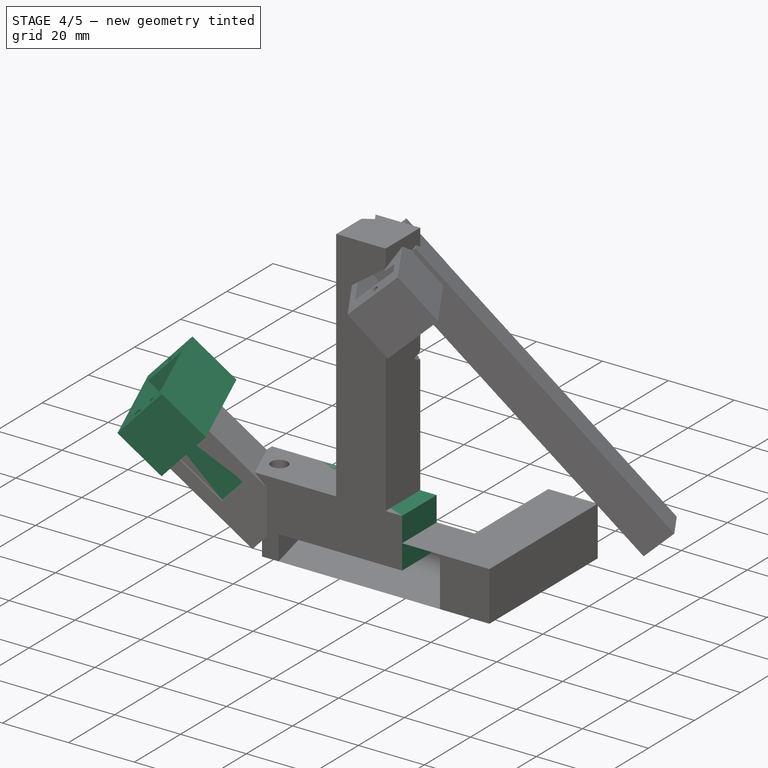
[diagram: stage 4 of 5 — iso view after this stage's code; geometry added in this stage tinted green]
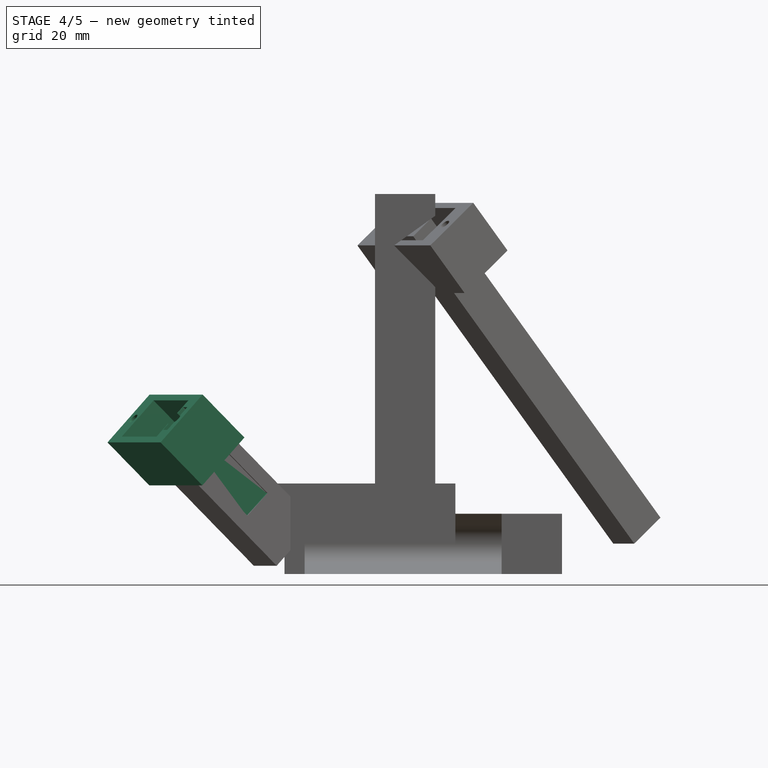
[diagram: stage 4 of 5 — front view after this stage's code; geometry added in this stage tinted green]
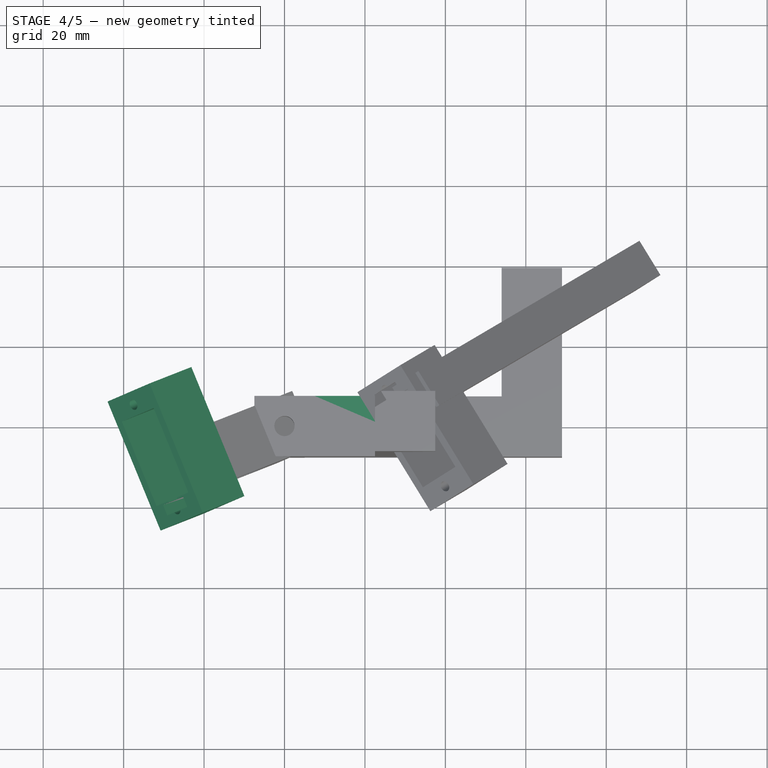
[diagram: stage 4 of 5 — top view after this stage's code; geometry added in this stage tinted green]
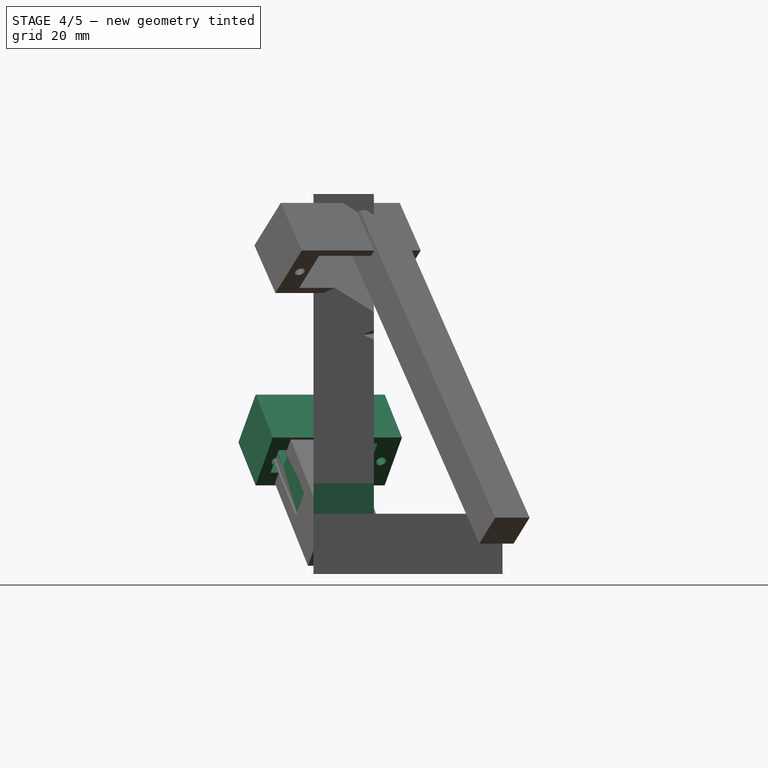
[diagram: stage 4 of 5 — right view after this stage's code; geometry added in this stage tinted green]
FEATURE [PartDesign::Plane] DatumPlane002  label="Height Surface"
  Length = 90.928
  MapMode = 5
  Placement = pos=(-19.9446,-8.19833,20.4954) rot=(0.507201,-0.339892,-0.791973;1.40452rad)
  ResizeMode = 0
  Support = -> [Pad]
  Width = 119.755
FEATURE [Sketcher::SketchObject] Sketch001
  FullyConstrained = true
  MapMode = 5
  Placement = pos=(-19.9446,-8.19833,20.4954) rot=(0.507201,-0.339892,-0.791973;1.40452rad)
  Support = -> [DatumPlane002]
  expr: Constraints[25] = <<Standards>>.thickness
  expr: Constraints[57] = 12.2 + <<Standards>>.tolerance
  expr: Constraints[7] = 22.5 + <<Standards>>.tolerance
  sketch-geometry (23):
    g0: GeomPoint X=0 Y=0 Z=0
    g1: GeomPoint X=6.5 Y=0 Z=0
    g2: LineSegment StartX=-16.2 StartY=6.2 StartZ=0 EndX=6.5 EndY=6.2 EndZ=0
    g3: LineSegment StartX=6.5 StartY=-6.2 StartZ=0 EndX=-16.2 EndY=-6.2 EndZ=0
    g4: LineSegment StartX=-16.2 StartY=-6.2 StartZ=0 EndX=-16.2 EndY=6.2 EndZ=0
    g5: LineSegment StartX=-22.2 StartY=8.2 StartZ=0 EndX=12.5 EndY=8.2 EndZ=0
    g6: LineSegment StartX=12.5 StartY=-8.2 StartZ=0 EndX=-22.2 EndY=-8.2 EndZ=0
    g7: LineSegment StartX=-22.2 StartY=-8.2 StartZ=0 EndX=-22.2 EndY=8.2 EndZ=0
    g8: LineSegment StartX=6.5 StartY=6.2 StartZ=0 EndX=6.5 EndY=8.2 EndZ=0
    g9: LineSegment StartX=-16.2 StartY=-6.2 StartZ=0 EndX=-16.2 EndY=-8.2 EndZ=0
    g10: LineSegment StartX=10.5 StartY=0 StartZ=0 EndX=12.5 EndY=0 EndZ=0
    g11: LineSegment StartX=12.5 StartY=8.2 StartZ=0 EndX=12.5 EndY=-8.2 EndZ=0
    g12: Circle CenterX=-18.9 CenterY=0 CenterZ=0 NormalX=0 NormalY=0 NormalZ=1 AngleXU=0 Radius=1.3
    g13: LineSegment StartX=-20.2 StartY=0 StartZ=0 EndX=-22.2 EndY=0 EndZ=0
    g14: LineSegment StartX=6.5 StartY=0 StartZ=0 EndX=9.2 EndY=0 EndZ=0
    g15: LineSegment StartX=-18.9 StartY=0 StartZ=0 EndX=-16.2 EndY=0 EndZ=0
    g16: LineSegment StartX=6.5 StartY=1.75 StartZ=0 EndX=9.7 EndY=1.75 EndZ=0
    g17: LineSegment StartX=9.7 StartY=-1.75 StartZ=0 EndX=6.5 EndY=-1.75 EndZ=0
    g18: ArcOfCircle CenterX=9.2 CenterY=0 CenterZ=0 NormalX=0 NormalY=0 NormalZ=1 AngleXU=0 Radius=1.3 StartAngle=5.10718 EndAngle=7.45919
    g19: LineSegment StartX=9.7 StartY=1.75 StartZ=0 EndX=9.7 EndY=1.2 EndZ=0
    g20: LineSegment StartX=9.7 StartY=-1.2 StartZ=0 EndX=9.7 EndY=-1.75 EndZ=0
    g21: LineSegment StartX=6.5 StartY=6.2 StartZ=0 EndX=6.5 EndY=1.75 EndZ=0
    g22: LineSegment StartX=6.5 StartY=-6.2 StartZ=0 EndX=6.5 EndY=-1.75 EndZ=0
  constraints (67):
    c: PointOnObject(g1,g-1)
    c: Distance(g1,g0) = 6.5
    c: Coincident(g3,g4)
    c: Coincident(g4,g2)
    c: Horizontal(g2)
    c: Horizontal(g3)
    c: Vertical(g4)
    c: Distance(g2) = 22.7
    c: Symmetric(g2,g3,g1)
    c: Coincident(g6,g7)
    c: Coincident(g7,g5)
    c: Horizontal(g5)
    c: Horizontal(g6)
    c: Vertical(g7)
    c: Coincident(g8,g2)
    c: PointOnObject(g8,g5)
    c: Vertical(g8)
    c: Coincident(g9,g3)
    c: PointOnObject(g9,g6)
    c: Vertical(g9)
    c: Coincident(g11,g5)
    c: Coincident(g6,g11)
    c: Vertical(g11)
    c: PointOnObject(g10,g11)
    c: Horizontal(g10)
    c: Distance(g10) = 2
    c: Equal(g8,g10)
    c: Equal(g9,g8)
    c: PointOnObject(g12,g-1)
    c: PointOnObject(g13,g12)
    c: PointOnObject(g13,g7)
    c: Perpendicular(g12,g13)
    c: Horizontal(g13)
    c: Equal(g13,g10)
    c: Coincident(g14,g1)
    c: Coincident(g15,g12)
    c: PointOnObject(g15,g4)
    c: Horizontal(g15)
    c: Equal(g15,g14)
    c: Horizontal(g16)
    c: Horizontal(g17)
    c: Distance(g16) = 3.2
    c: Coincident(g19,g16)
    c: Coincident(g19,g18)
    c: Vertical(g19)
    c: Coincident(g20,g18)
    c: Coincident(g20,g17)
    c: Vertical(g20)
    c: Coincident(g21,g2)
    c: Coincident(g21,g16)
    c: Coincident(g22,g3)
    c: Coincident(g22,g17)
    c: Vertical(g21)
    c: Vertical(g22)
    c: PointOnObject(g3,g21)
    c: Equal(g19,g20)
    c: PointOnObject(g18,g19)
    c: Distance(g2,g3) = 12.4
    c: Distance(g14) = 2.7
    c: PointOnObject(g10,g18)
    c: Diameter(g18) = 2.6
    c: Equal(g12,g18)
    c: Coincident(g14,g18)
    c: Horizontal(g14)
    c: Distance(g16,g17) = 3.5
    c: Perpendicular(g18,g10)
    c: Coincident(g-1,g0)
FEATURE [PartDesign::Pad] Pad001  label="Servo Mount"
  BaseFeature = -> Pad
  Direction = (-0.670407,-0.275574,0.688921)
  Length = 15.5
  Length2 = 10
  Placement = pos=(0,0,0) rot=(0.507201,-0.339892,-0.791973;1.40452rad)
  Profile = -> Sketch001
  ReferenceAxis = -> Sketch001 [N_Axis]
  Type = 0
  expr: Length = 15.5
FEATURE [PartDesign::Body] Body001  label="Stand"
  Group = -> [Sketch002,Pad002,Sketch003,Pad003]
  Origin = -> Origin002
  Placement = pos=(0,0,-16) rot=(0,0,1;0rad)
  Tip = -> Pad003
FEATURE [Sketcher::SketchObject] Sketch004
  FullyConstrained = true
  MapMode = 5
  Support = -> [XY_Plane005]
  expr: Constraints[12] = <<Standards>>.shaft_thickness
  expr: Constraints[21] = <<Variables>>.length_1
  sketch-geometry (11):
    g0: Circle CenterX=0 CenterY=0 CenterZ=0 NormalX=0 NormalY=0 NormalZ=1 AngleXU=0 Radius=2.5
    g1: LineSegment StartX=7.5 StartY=-7.5 StartZ=0 EndX=7.5 EndY=7.5 EndZ=0
    g2: LineSegment StartX=7.5 StartY=7.5 StartZ=0 EndX=-7.5 EndY=7.5 EndZ=0
    g3: LineSegment StartX=-7.5 StartY=7.5 StartZ=0 EndX=-7.5 EndY=-7.5 EndZ=0
    g4: LineSegment StartX=-7.5 StartY=-7.5 StartZ=0 EndX=7.5 EndY=-7.5 EndZ=0
    g5: GeomPoint X=0 Y=0 Z=0
    g6: LineSegment StartX=7.5 StartY=7.5 StartZ=0 EndX=42.5 EndY=7.5 EndZ=0
    g7: LineSegment StartX=42.5 StartY=7.5 StartZ=0 EndX=42.5 EndY=-7.5 EndZ=0
    g8: LineSegment StartX=42.5 StartY=-7.5 StartZ=0 EndX=7.5 EndY=-7.5 EndZ=0
    g9: GeomPoint X=35 Y=0 Z=0
    g10: LineSegment StartX=27.5 StartY=0 StartZ=0 EndX=42.5 EndY=0 EndZ=0
  constraints (27):
    c: Coincident(g0,g-1)
    c: Diameter(g0) = 5
    c: Coincident(g1,g2)
    c: Coincident(g2,g3)
    c: Coincident(g3,g4)
    c: Coincident(g4,g1)
    c: Horizontal(g2)
    c: Horizontal(g4)
    c: Vertical(g1)
    c: Vertical(g3)
    c: Symmetric(g2,g1,g5)
    c: Coincident(g5,g0)
    c: Distance(g3) = 15
    c: Equal(g3,g2)
    c: Coincident(g6,g2)
    c: Horizontal(g6)
    c: Coincident(g7,g6)
    c: Vertical(g7)
    c: Coincident(g8,g7)
    c: Coincident(g8,g4)
    c: Horizontal(g8)
    c: Distance(g9,g0) = 35
    c: PointOnObject(g10,g-1)
    c: PointOnObject(g10,g-1)
    c: Symmetric(g10,g10,g9)
    c: Equal(g10,g1)
    c: PointOnObject(g10,g7)
FEATURE [PartDesign::Pad] Pad004
  Direction = (0,0,1)
  Length = 15
  Length2 = 10
  Profile = -> Sketch004
  ReferenceAxis = -> Sketch004 [N_Axis]
  Type = 0
  expr: Length = <<Standards>>.shaft_thickness
FEATURE [PartDesign::Plane] DatumPlane003
  AttachmentOffset = pos=(0,0,-3) rot=(0,0,1;0rad)
  Length = 94.0812
  MapMode = 5
  Placement = pos=(0,0,3) rot=(1,0,0;3.14159rad)
  ResizeMode = 0
  Support = -> [Pad004]
  Width = 65.3725
FEATURE [Sketcher::SketchObject] Sketch005
  ExternalGeometry = -> [Pad004]
  FullyConstrained = true
  MapMode = 5
  Placement = pos=(0,0,3) rot=(1,0,0;3.14159rad)
  Support = -> [DatumPlane003]
  sketch-geometry (2):
    g0: Circle CenterX=0 CenterY=0 CenterZ=0 NormalX=0 NormalY=0 NormalZ=1 AngleXU=0 Radius=1.35
    g1: Circle CenterX=0 CenterY=0 CenterZ=0 NormalX=0 NormalY=0 NormalZ=1 AngleXU=0 Radius=2.5
  constraints (4):
    c: Coincident(g0,g-3)
    c: Diameter(g0) = 2.7
    c: Coincident(g1,g0)
    c: Equal(g1,g-3)
FEATURE [PartDesign::Pad] Pad005
  BaseFeature = -> Pad004
  Direction = (0,0,-1)
  Length = 2
  Length2 = 10
  Profile = -> Sketch005
  ReferenceAxis = -> Sketch005 [N_Axis]
  Reversed = true
  Type = 0
FEATURE [PartDesign::Body] Body003  label="Arm"
  Group = -> [Sketch004,Pad004,DatumPlane003,Sketch005,Pad005,DatumPlane006,DatumPlane007,Sketch006,Pad006,Sketch007,Pocket,Sketch014,Pocket003]
  Origin = -> Origin005
  Placement = pos=(-37.7348,-15.583,38.6897) rot=(0.510051,-0.340034,-0.790079;1.40447rad)
  Tip = -> Pocket003
FEATURE [Sketcher::SketchObject] Sketch015
  ExternalGeometry = -> [Pad001]
  FullyConstrained = true
  MapMode = 5
  Placement = pos=(-19.9446,-8.19833,20.4954) rot=(0.507201,-0.339892,-0.791973;1.40452rad)
  Support = -> [DatumPlane002]
  expr: Constraints[8] = 7.6 + <<Standards>>.tolerance
  expr: Constraints[9] = 2.6 + <<Standards>>.tolerance
  sketch-geometry (5):
    g0: LineSegment StartX=6.9 StartY=3.9 StartZ=0 EndX=9.7 EndY=3.9 EndZ=0
    g1: LineSegment StartX=9.7 StartY=3.9 StartZ=0 EndX=9.7 EndY=-3.9 EndZ=0
    g2: LineSegment StartX=9.7 StartY=-3.9 StartZ=0 EndX=6.9 EndY=-3.9 EndZ=0
    g3: LineSegment StartX=6.9 StartY=-3.9 StartZ=0 EndX=6.9 EndY=3.9 EndZ=0
    g4: GeomPoint X=9.7 Y=-4.5e-15 Z=0
  constraints (12):
    c: Coincident(g0,g1)
    c: Coincident(g1,g2)
    c: Coincident(g2,g3)
    c: Coincident(g3,g0)
    c: Horizontal(g0)
    c: Horizontal(g2)
    c: Vertical(g1)
    c: Vertical(g3)
    c: Distance(g3) = 7.8
    c: Distance(g0) = 2.8
    c: Symmetric(g0,g1,g4)
    c: Symmetric(g-3,g-4,g4)
FEATURE [PartDesign::Pocket] Pocket004
  BaseFeature = -> Pad001
  Direction = (0.670407,0.275574,-0.688921)
  Length = 31
  Length2 = 5
  Midplane = true
  Placement = pos=(0,0,0) rot=(0.507201,-0.339892,-0.791973;1.40452rad)
  Profile = -> Sketch015
  ReferenceAxis = -> Sketch015 [N_Axis]
  Type = 0
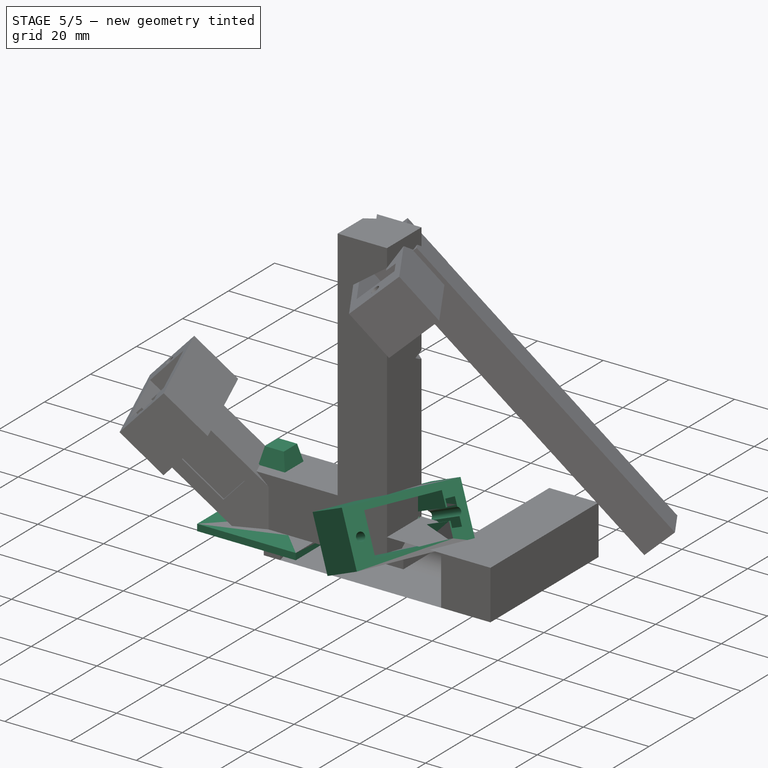
[diagram: stage 5 of 5 — iso view after this stage's code; geometry added in this stage tinted green]
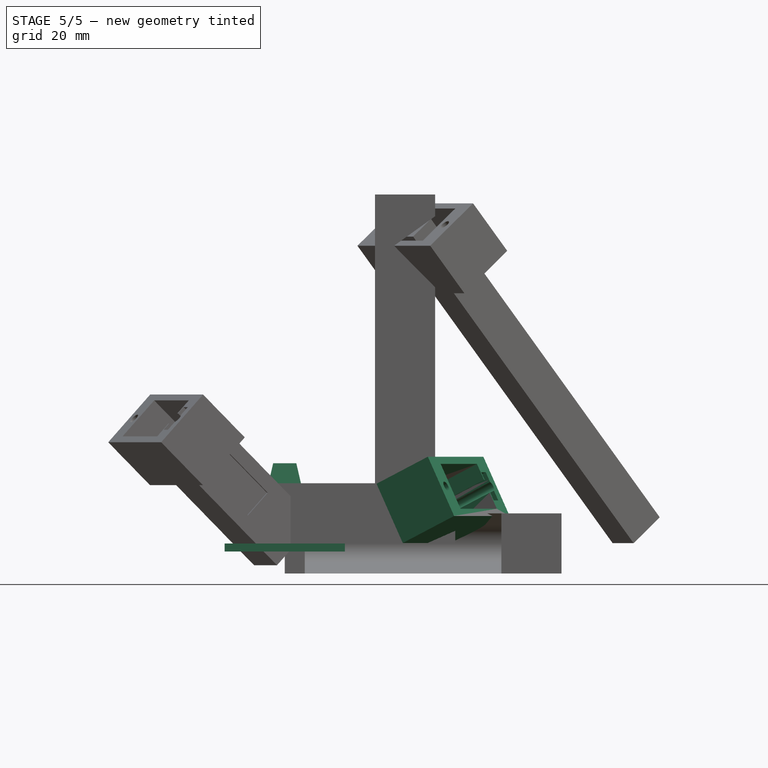
[diagram: stage 5 of 5 — front view after this stage's code; geometry added in this stage tinted green]
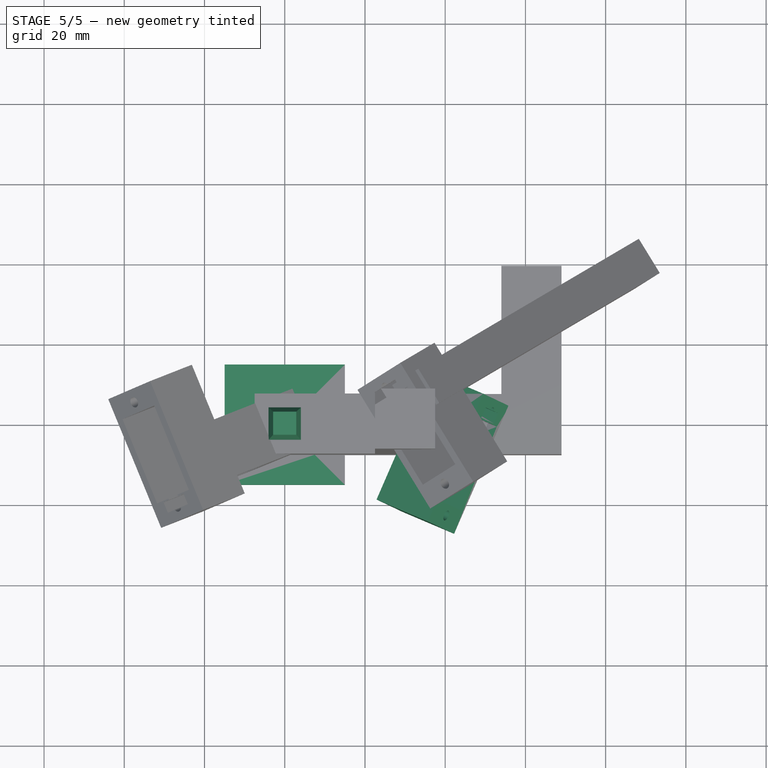
[diagram: stage 5 of 5 — top view after this stage's code; geometry added in this stage tinted green]
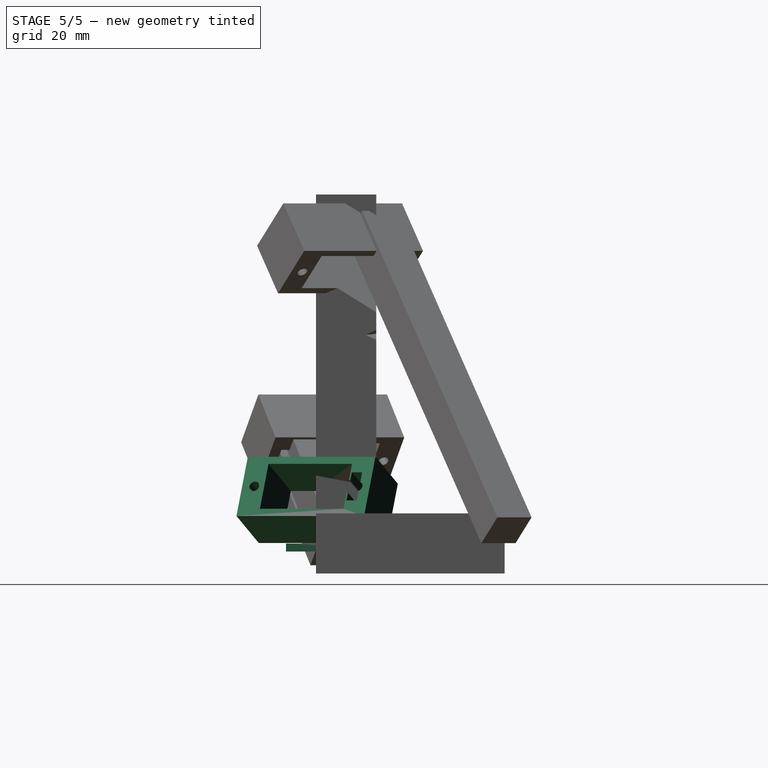
[diagram: stage 5 of 5 — right view after this stage's code; geometry added in this stage tinted green]
FEATURE [Sketcher::SketchObject] Sketch002
  FullyConstrained = true
  MapMode = 5
  Support = -> [XY_Plane002]
  expr: Constraints[10] = <<Standards>>.shaft_thickness * 2
  sketch-geometry (5):
    g0: LineSegment StartX=-15 StartY=-15 StartZ=0 EndX=-15 EndY=15 EndZ=0
    g1: LineSegment StartX=-15 StartY=15 StartZ=0 EndX=15 EndY=15 EndZ=0
    g2: LineSegment StartX=15 StartY=15 StartZ=0 EndX=15 EndY=-15 EndZ=0
    g3: LineSegment StartX=15 StartY=-15 StartZ=0 EndX=-15 EndY=-15 EndZ=0
    g4: GeomPoint X=0 Y=0 Z=0
  constraints (12):
    c: Coincident(g0,g1)
    c: Coincident(g1,g2)
    c: Coincident(g2,g3)
    c: Coincident(g3,g0)
    c: Horizontal(g1)
    c: Horizontal(g3)
    c: Vertical(g0)
    c: Vertical(g2)
    c: Symmetric(g1,g0,g4)
    c: Coincident(g4,g-1)
    c: Distance(g1) = 30
    c: Equal(g1,g2)
FEATURE [PartDesign::Pad] Pad002
  Direction = (0,0,1)
  Length = 2
  Length2 = 10
  Profile = -> Sketch002
  ReferenceAxis = -> Sketch002 [N_Axis]
  Reversed = true
  Type = 0
  expr: Length = <<Standards>>.thickness
FEATURE [Sketcher::SketchObject] Sketch003
  FullyConstrained = true
  MapMode = 5
  Support = -> [XY_Plane002]
  expr: Constraints[10] = <<Standards>>.shaft_thickness
  sketch-geometry (5):
    g0: LineSegment StartX=-7.5 StartY=-7.5 StartZ=0 EndX=-7.5 EndY=7.5 EndZ=0
    g1: LineSegment StartX=-7.5 StartY=7.5 StartZ=0 EndX=7.5 EndY=7.5 EndZ=0
    g2: LineSegment StartX=7.5 StartY=7.5 StartZ=0 EndX=7.5 EndY=-7.5 EndZ=0
    g3: LineSegment StartX=7.5 StartY=-7.5 StartZ=0 EndX=-7.5 EndY=-7.5 EndZ=0
    g4: GeomPoint X=0 Y=0 Z=0
  constraints (12):
    c: Coincident(g0,g1)
    c: Coincident(g1,g2)
    c: Coincident(g2,g3)
    c: Coincident(g3,g0)
    c: Horizontal(g1)
    c: Horizontal(g3)
    c: Vertical(g0)
    c: Vertical(g2)
    c: Symmetric(g1,g0,g4)
    c: Coincident(g4,g-1)
    c: Distance(g1) = 15
    c: Equal(g1,g2)
FEATURE [PartDesign::Pad] Pad003
  BaseFeature = -> Pad002
  Direction = (0,0,1)
  Length = 20
  Length2 = 10
  Profile = -> Sketch003
  ReferenceAxis = -> Sketch003 [N_Axis]
  TaperAngle = -13
  Type = 0
FEATURE [PartDesign::Plane] DatumPlane006  label="Alpha002"
  AttachmentOffset = pos=(0,7.5,35) rot=(0,-1,0;0.41rad)
  Length = 92.9897
  MapMode = 5
  Placement = pos=(35,-6.1e-15,7.5) rot=(0.733239,0.480812,0.480812;1.87622rad)
  ResizeMode = 0
  Support = -> [YZ_Plane005]
  Width = 62.674
  expr: .AttachmentOffset.Base.y = <<Standards>>.shaft_thickness / 2
  expr: .AttachmentOffset.Base.z = <<Variables>>.length_1
  expr: .AttachmentOffset.Rotation.Pitch = <<Variables>>.alpha_2 * 180 / pi
FEATURE [PartDesign::Plane] DatumPlane007  label="Beta002"
  AttachmentOffset = pos=(0,0,0) rot=(-1,0,0;0.45rad)
  Length = 96.9792
  MapMode = 5
  Placement = pos=(35,-1.8e-15,7.5) rot=(0.629691,0.412912,0.658022;1.56732rad)
  ResizeMode = 0
  Support = -> [DatumPlane006]
  Width = 103.095
  expr: .AttachmentOffset.Rotation.Roll = -<<Variables>>.beta_2 * 180 / pi
FEATURE [Sketcher::SketchObject] Sketch006
  FullyConstrained = true
  MapMode = 5
  Placement = pos=(35,-1.8e-15,7.5) rot=(0.629691,0.412912,0.658022;1.56732rad)
  Support = -> [DatumPlane007]
  expr: Constraints[50] = <<Standards>>.thickness
  expr: Constraints[55] = 22.5 + <<Standards>>.tolerance
  expr: Constraints[56] = 12.2 + <<Standards>>.tolerance
  sketch-geometry (21):
    g0: LineSegment StartX=-16.2 StartY=6.2 StartZ=0 EndX=6.5 EndY=6.2 EndZ=0
    g1: LineSegment StartX=6.5 StartY=-6.2 StartZ=0 EndX=-16.2 EndY=-6.2 EndZ=0
    g2: LineSegment StartX=-16.2 StartY=-6.2 StartZ=0 EndX=-16.2 EndY=6.2 EndZ=0
    g3: LineSegment StartX=6.5 StartY=6.2 StartZ=0 EndX=6.5 EndY=1.75 EndZ=0
    g4: LineSegment StartX=6.5 StartY=-6.2 StartZ=0 EndX=6.5 EndY=-1.75 EndZ=0
    g5: LineSegment StartX=6.5 StartY=1.75 StartZ=0 EndX=9.7 EndY=1.75 EndZ=0
    g6: LineSegment StartX=6.5 StartY=-1.75 StartZ=0 EndX=9.7 EndY=-1.75 EndZ=0
    g7: LineSegment StartX=9.7 StartY=1.75 StartZ=0 EndX=9.7 EndY=1.2 EndZ=0
    g8: LineSegment StartX=9.7 StartY=-1.75 StartZ=0 EndX=9.7 EndY=-1.2 EndZ=0
    g9: ArcOfCircle CenterX=9.2 CenterY=0 CenterZ=0 NormalX=0 NormalY=0 NormalZ=1 AngleXU=0 Radius=1.3 StartAngle=5.10718 EndAngle=7.45919
    g10: Circle CenterX=-18.9 CenterY=0 CenterZ=0 NormalX=0 NormalY=0 NormalZ=1 AngleXU=0 Radius=1.3
    g11: LineSegment StartX=-22.2 StartY=8.2 StartZ=0 EndX=12.5 EndY=8.2 EndZ=0
    g12: LineSegment StartX=12.5 StartY=8.2 StartZ=0 EndX=12.5 EndY=-8.2 EndZ=0
    g13: LineSegment StartX=12.5 StartY=-8.2 StartZ=0 EndX=-22.2 EndY=-8.2 EndZ=0
    g14: LineSegment StartX=-22.2 StartY=-8.2 StartZ=0 EndX=-22.2 EndY=8.2 EndZ=0
    g15: LineSegment StartX=10.5 StartY=0 StartZ=0 EndX=12.5 EndY=0 EndZ=0
    g16: LineSegment StartX=-20.2 StartY=0 StartZ=0 EndX=-22.2 EndY=0 EndZ=0
    g17: LineSegment StartX=9.2 StartY=0 StartZ=0 EndX=6.5 EndY=0 EndZ=0
    g18: LineSegment StartX=-18.9 StartY=0 StartZ=0 EndX=-16.2 EndY=0 EndZ=0
    g19: LineSegment StartX=-16.2 StartY=-6.2 StartZ=0 EndX=-16.2 EndY=-8.2 EndZ=0
    g20: LineSegment StartX=6.5 StartY=6.2 StartZ=0 EndX=6.5 EndY=8.2 EndZ=0
  constraints (66):
    c: Coincident(g1,g2)
    c: Coincident(g2,g0)
    c: Horizontal(g0)
    c: Horizontal(g1)
    c: Vertical(g2)
    c: Coincident(g3,g0)
    c: Vertical(g3)
    c: Coincident(g4,g1)
    c: Coincident(g5,g3)
    c: Horizontal(g5)
    c: Coincident(g6,g4)
    c: Horizontal(g6)
    c: Vertical(g4)
    c: Coincident(g7,g5)
    c: Vertical(g7)
    c: Coincident(g8,g6)
    c: Vertical(g8)
    c: PointOnObject(g9,g-1)
    c: Coincident(g9,g7)
    c: Coincident(g9,g8)
    c: Equal(g3,g4)
    c: Equal(g5,g6)
    c: Equal(g7,g8)
    c: PointOnObject(g10,g-1)
    c: Coincident(g11,g12)
    c: Coincident(g12,g13)
    c: Coincident(g13,g14)
    c: Coincident(g14,g11)
    c: Horizontal(g11)
    c: Horizontal(g13)
    c: Vertical(g12)
    c: Vertical(g14)
    c: PointOnObject(g15,g9)
    c: PointOnObject(g15,g12)
    c: PointOnObject(g16,g10)
    c: PointOnObject(g16,g14)
    c: Perpendicular(g10,g16)
    c: Perpendicular(g9,g15)
    c: Horizontal(g15)
    c: Horizontal(g16)
    c: Equal(g16,g15)
    c: Equal(g9,g10)
    c: Coincident(g17,g9)
    c: PointOnObject(g17,g-1)
    c: PointOnObject(g3,g4)
    c: PointOnObject(g17,g3)
    c: Coincident(g18,g10)
    c: PointOnObject(g18,g2)
    c: Horizontal(g18)
    c: Equal(g18,g17)
    c: Distance(g15) = 2
    c: DistanceY(g4,g3) = 3.5
    c: Distance(g5) = 3.2
    c: Diameter(g9) = 2.6
    c: Distance(g17) = 2.7
    c: Distance(g0) = 22.7
    c: Distance(g2) = 12.4
    c: Coincident(g19,g1)
    c: PointOnObject(g19,g13)
    c: Vertical(g19)
    c: Coincident(g20,g0)
    c: PointOnObject(g20,g11)
    c: Vertical(g20)
    c: Equal(g20,g19)
    c: Equal(g19,g16)
    c: Distance(g17,g-1) = 6.5
FEATURE [PartDesign::Pad] Pad006
  BaseFeature = -> Pad005
  Direction = (0.825819,-0.358927,0.434966)
  Length = 15.5
  Length2 = 10
  Profile = -> Sketch006
  ReferenceAxis = -> Sketch006 [N_Axis]
  Type = 0
FEATURE [Sketcher::SketchObject] Sketch007
  FullyConstrained = true
  MapMode = 5
  Placement = pos=(35,-1.8e-15,7.5) rot=(0.629691,0.412912,0.658022;1.56732rad)
  Support = -> [DatumPlane007]
  expr: Constraints[50] = Sketch006.Constraints[50]
  expr: Constraints[51] = Sketch006.Constraints[51]
  expr: Constraints[52] = Sketch006.Constraints[52]
  expr: Constraints[53] = Sketch006.Constraints[53]
  expr: Constraints[54] = Sketch006.Constraints[54]
  expr: Constraints[55] = Sketch006.Constraints[55]
  expr: Constraints[56] = Sketch006.Constraints[56]
  expr: Constraints[65] = Sketch006.Constraints[65]
  sketch-geometry (21):
    g0: LineSegment StartX=-16.2 StartY=6.2 StartZ=0 EndX=6.5 EndY=6.2 EndZ=0
    g1: LineSegment StartX=6.5 StartY=-6.2 StartZ=0 EndX=-16.2 EndY=-6.2 EndZ=0
    g2: LineSegment StartX=-16.2 StartY=-6.2 StartZ=0 EndX=-16.2 EndY=6.2 EndZ=0
    g3: LineSegment StartX=6.5 StartY=6.2 StartZ=0 EndX=6.5 EndY=1.75 EndZ=0
    g4: LineSegment StartX=6.5 StartY=-6.2 StartZ=0 EndX=6.5 EndY=-1.75 EndZ=0
    g5: LineSegment StartX=6.5 StartY=1.75 StartZ=0 EndX=9.7 EndY=1.75 EndZ=0
    g6: LineSegment StartX=6.5 StartY=-1.75 StartZ=0 EndX=9.7 EndY=-1.75 EndZ=0
    g7: LineSegment StartX=9.7 StartY=1.75 StartZ=0 EndX=9.7 EndY=1.2 EndZ=0
    g8: LineSegment StartX=9.7 StartY=-1.75 StartZ=0 EndX=9.7 EndY=-1.2 EndZ=0
    g9: ArcOfCircle CenterX=9.2 CenterY=0 CenterZ=0 NormalX=0 NormalY=0 NormalZ=1 AngleXU=0 Radius=1.3 StartAngle=5.10718 EndAngle=7.45919
    g10: Circle CenterX=-18.9 CenterY=0 CenterZ=0 NormalX=0 NormalY=0 NormalZ=1 AngleXU=0 Radius=1.3
    g11: LineSegment StartX=-22.2 StartY=8.2 StartZ=0 EndX=12.5 EndY=8.2 EndZ=0
    g12: LineSegment StartX=12.5 StartY=8.2 StartZ=0 EndX=12.5 EndY=-8.2 EndZ=0
    g13: LineSegment StartX=12.5 StartY=-8.2 StartZ=0 EndX=-22.2 EndY=-8.2 EndZ=0
    g14: LineSegment StartX=-22.2 StartY=-8.2 StartZ=0 EndX=-22.2 EndY=8.2 EndZ=0
    g15: LineSegment StartX=10.5 StartY=0 StartZ=0 EndX=12.5 EndY=0 EndZ=0
    g16: LineSegment StartX=-20.2 StartY=0 StartZ=0 EndX=-22.2 EndY=0 EndZ=0
    g17: LineSegment StartX=9.2 StartY=0 StartZ=0 EndX=6.5 EndY=0 EndZ=0
    g18: LineSegment StartX=-18.9 StartY=0 StartZ=0 EndX=-16.2 EndY=0 EndZ=0
    g19: LineSegment StartX=-16.2 StartY=-6.2 StartZ=0 EndX=-16.2 EndY=-8.2 EndZ=0
    g20: LineSegment StartX=6.5 StartY=6.2 StartZ=0 EndX=6.5 EndY=8.2 EndZ=0
  constraints (66):
    c: Coincident(g1,g2)
    c: Coincident(g2,g0)
    c: Horizontal(g0)
    c: Horizontal(g1)
    c: Vertical(g2)
    c: Coincident(g3,g0)
    c: Vertical(g3)
    c: Coincident(g4,g1)
    c: Coincident(g5,g3)
    c: Horizontal(g5)
    c: Coincident(g6,g4)
    c: Horizontal(g6)
    c: Vertical(g4)
    c: Coincident(g7,g5)
    c: Vertical(g7)
    c: Coincident(g8,g6)
    c: Vertical(g8)
    c: PointOnObject(g9,g-1)
    c: Coincident(g9,g7)
    c: Coincident(g9,g8)
    c: Equal(g3,g4)
    c: Equal(g5,g6)
    c: Equal(g7,g8)
    c: PointOnObject(g10,g-1)
    c: Coincident(g11,g12)
    c: Coincident(g12,g13)
    c: Coincident(g13,g14)
    c: Coincident(g14,g11)
    c: Horizontal(g11)
    c: Horizontal(g13)
    c: Vertical(g12)
    c: Vertical(g14)
    c: PointOnObject(g15,g9)
    c: PointOnObject(g15,g12)
    c: PointOnObject(g16,g10)
    c: PointOnObject(g16,g14)
    c: Perpendicular(g10,g16)
    c: Perpendicular(g9,g15)
    c: Horizontal(g15)
    c: Horizontal(g16)
    c: Equal(g16,g15)
    c: Equal(g9,g10)
    c: Coincident(g17,g9)
    c: PointOnObject(g17,g-1)
    c: PointOnObject(g3,g4)
    c: PointOnObject(g17,g3)
    c: Coincident(g18,g10)
    c: PointOnObject(g18,g2)
    c: Horizontal(g18)
    c: Equal(g18,g17)
    c: Distance(g15) = 2
    c: DistanceY(g4,g3) = 3.5
    c: Distance(g5) = 3.2
    c: Diameter(g9) = 2.6
    c: Distance(g17) = 2.7
    c: Distance(g0) = 22.7
    c: Distance(g2) = 12.4
    c: Coincident(g19,g1)
    c: PointOnObject(g19,g13)
    c: Vertical(g19)
    c: Coincident(g20,g0)
    c: PointOnObject(g20,g11)
    c: Vertical(g20)
    c: Equal(g20,g19)
    c: Equal(g19,g16)
    c: Distance(g17,g-1) = 6.5
FEATURE [PartDesign::Pocket] Pocket
  BaseFeature = -> Pad006
  Direction = (-0.825819,0.358927,-0.434966)
  Length = 33
  Length2 = 15.5
  Profile = -> Sketch007
  ReferenceAxis = -> Sketch007 [N_Axis]
  Reversed = true
  Type = 0
FEATURE [Sketcher::SketchObject] Sketch014
  ExternalGeometry = -> [Pocket]
  FullyConstrained = true
  MapMode = 5
  Placement = pos=(35,-1.8e-15,7.5) rot=(0.629691,0.412912,0.658022;1.56732rad)
  Support = -> [DatumPlane007]
  expr: Constraints[10] = 7.6 + <<Standards>>.tolerance
  expr: Constraints[11] = 2.6 + <<Standards>>.tolerance
  sketch-geometry (5):
    g0: LineSegment StartX=6.9 StartY=-3.9 StartZ=0 EndX=9.7 EndY=-3.9 EndZ=0
    g1: LineSegment StartX=9.7 StartY=-3.9 StartZ=0 EndX=9.7 EndY=3.9 EndZ=0
    g2: LineSegment StartX=9.7 StartY=3.9 StartZ=0 EndX=6.9 EndY=3.9 EndZ=0
    g3: LineSegment StartX=6.9 StartY=3.9 StartZ=0 EndX=6.9 EndY=-3.9 EndZ=0
    g4: GeomPoint X=9.7 Y=-1.314e-13 Z=0
  constraints (12):
    c: Coincident(g0,g1)
    c: Coincident(g1,g2)
    c: Coincident(g2,g3)
    c: Coincident(g3,g0)
    c: Horizontal(g0)
    c: Horizontal(g2)
    c: Vertical(g1)
    c: Vertical(g3)
    c: Symmetric(g-4,g-3,g4)
    c: Symmetric(g0,g1,g4)
    c: Distance(g1) = 7.8
    c: Distance(g0) = 2.8
FEATURE [PartDesign::Pocket] Pocket003
  BaseFeature = -> Pocket
  Direction = (-0.825819,0.358927,-0.434966)
  Length = 50
  Length2 = 5
  Midplane = true
  Profile = -> Sketch014
  ReferenceAxis = -> Sketch014 [N_Axis]
  Type = 0
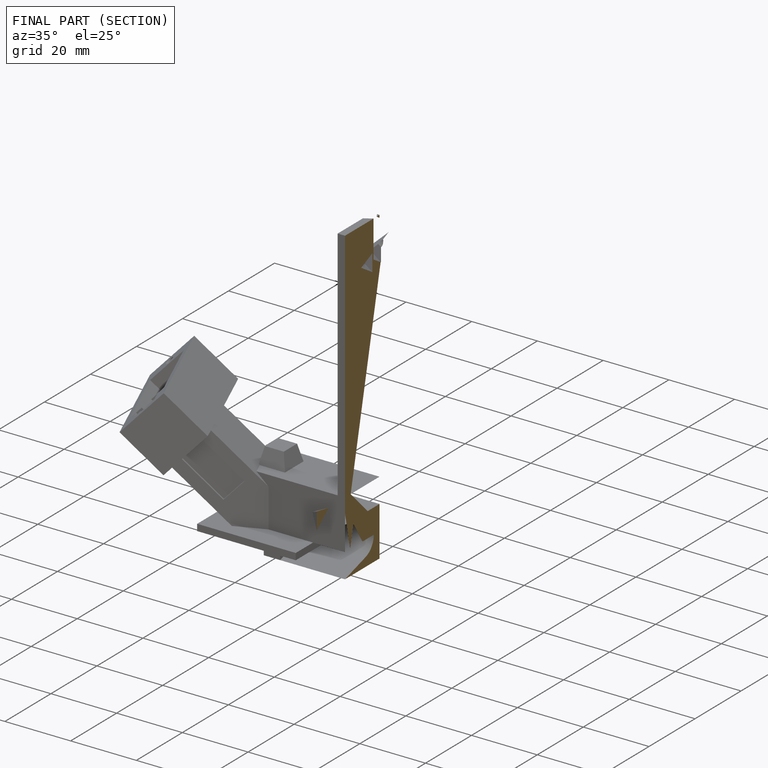
[diagram: finished part — half-section view (interior)]
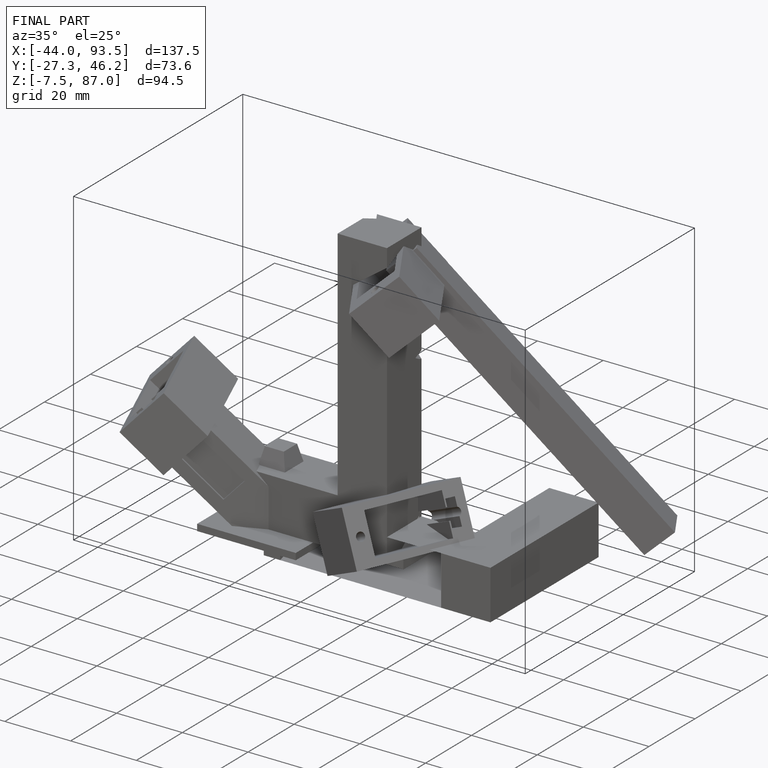
[diagram: finished part — iso view with bounding-box wireframe]
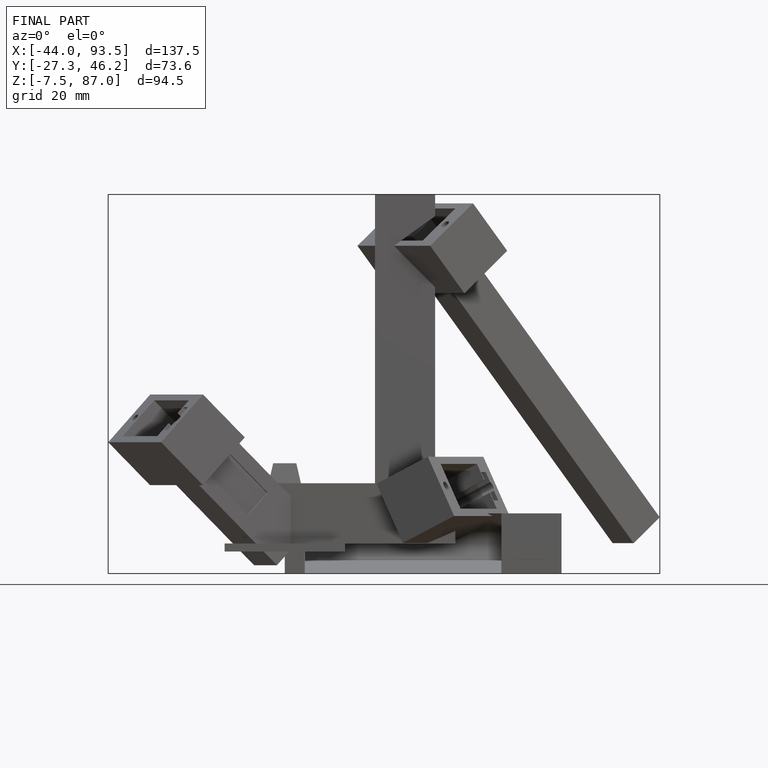
[diagram: finished part — front view with bounding-box wireframe]
